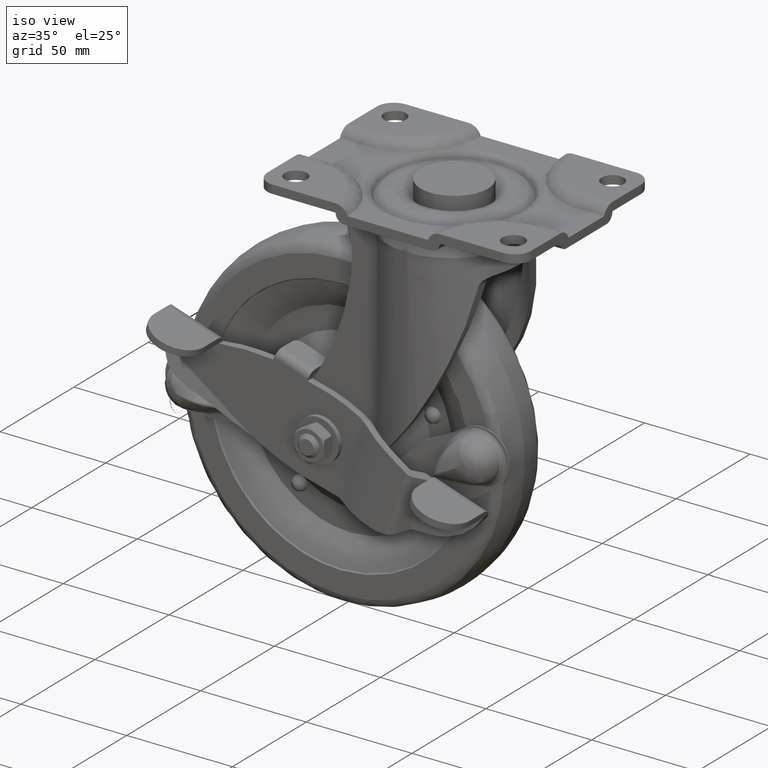
[diagram: clean part render]
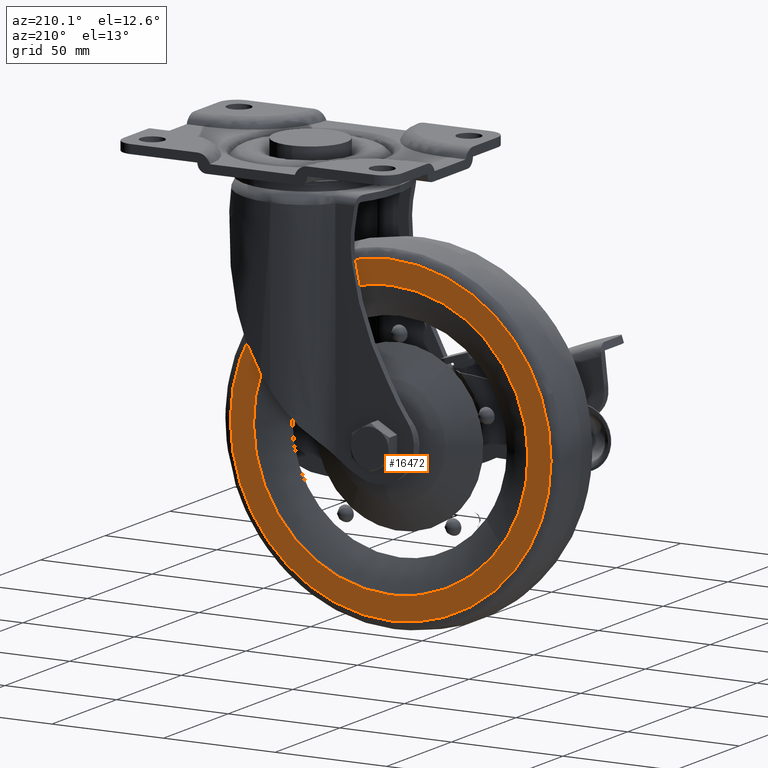
[diagram: tour spotlight — one face highlighted and labeled with its STEP entity id]
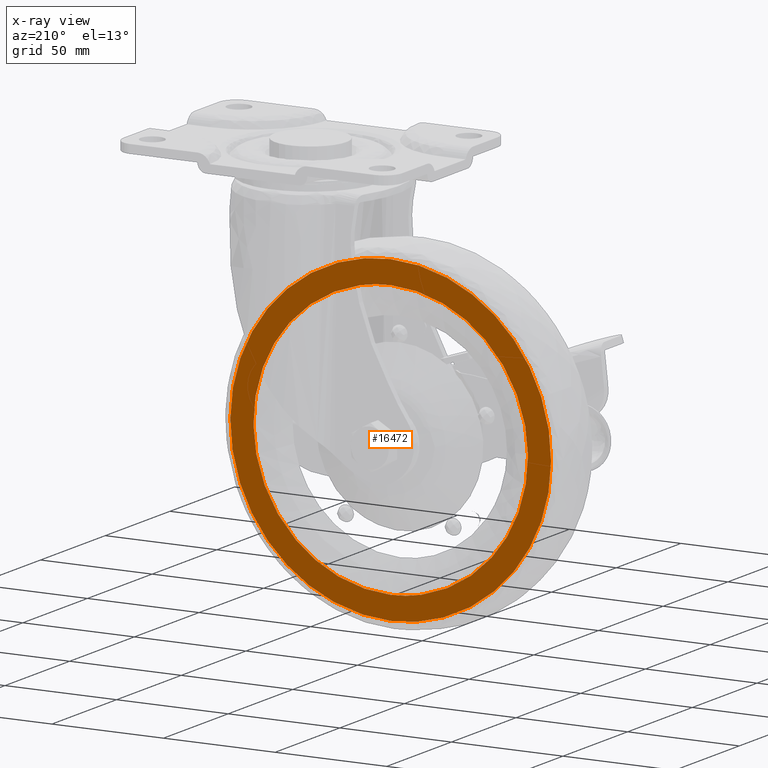
[diagram: x-ray of the same camera — body ghosted, this tour face saturated]
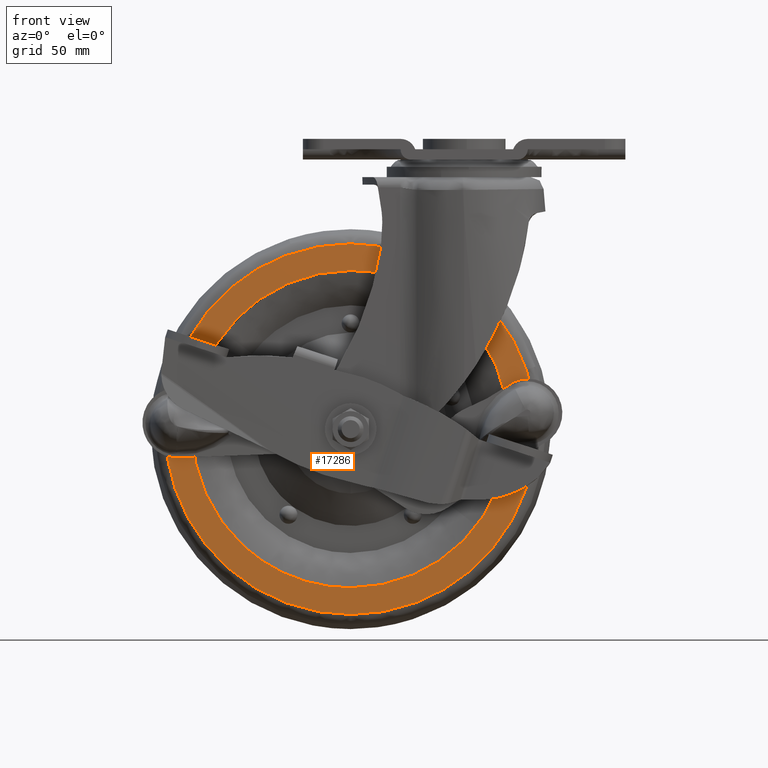
[diagram: tour spotlight — one face highlighted and labeled with its STEP entity id]
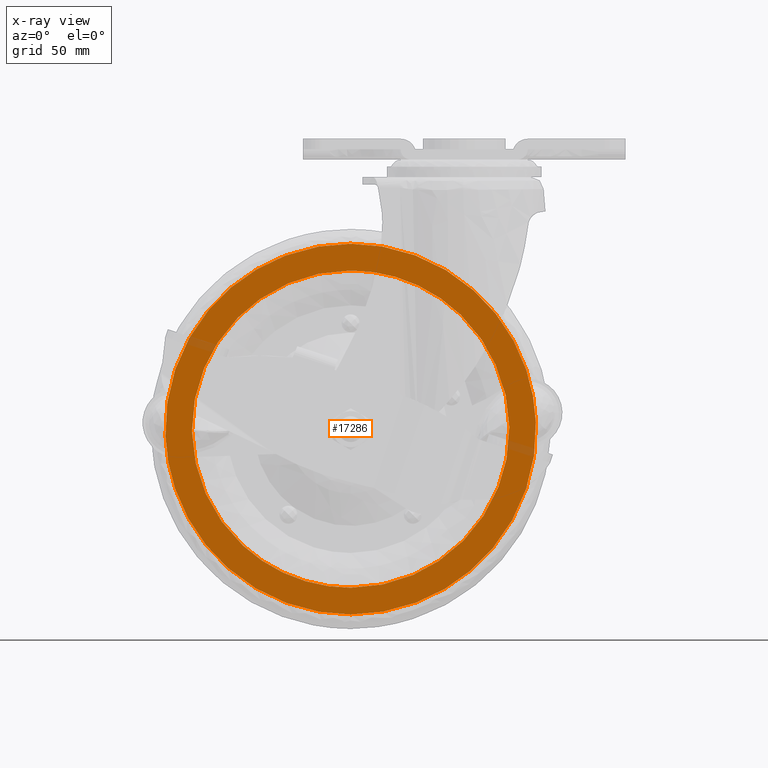
[diagram: x-ray of the same camera — body ghosted, this tour face saturated]
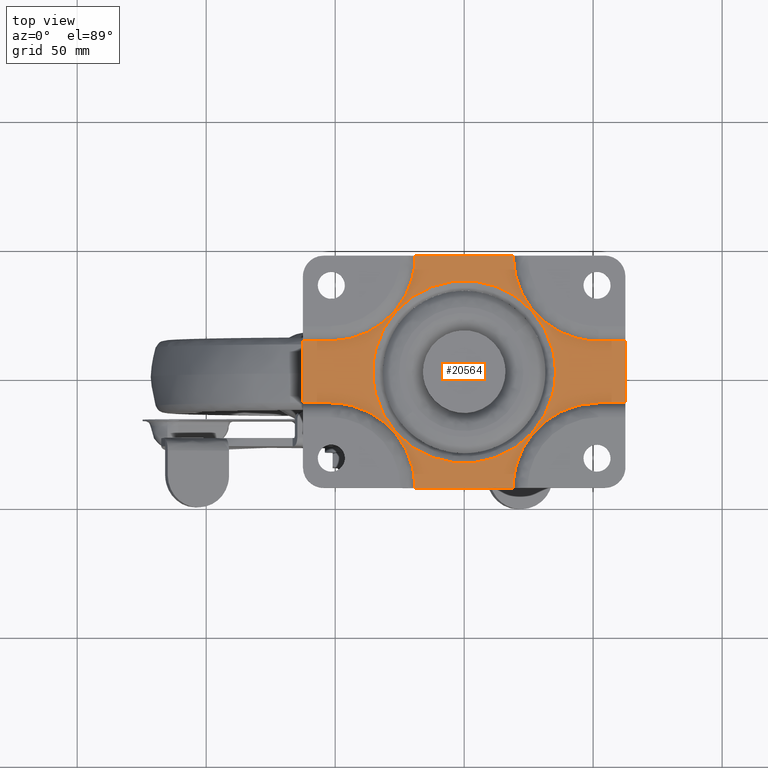
[diagram: tour spotlight — one face highlighted and labeled with its STEP entity id]
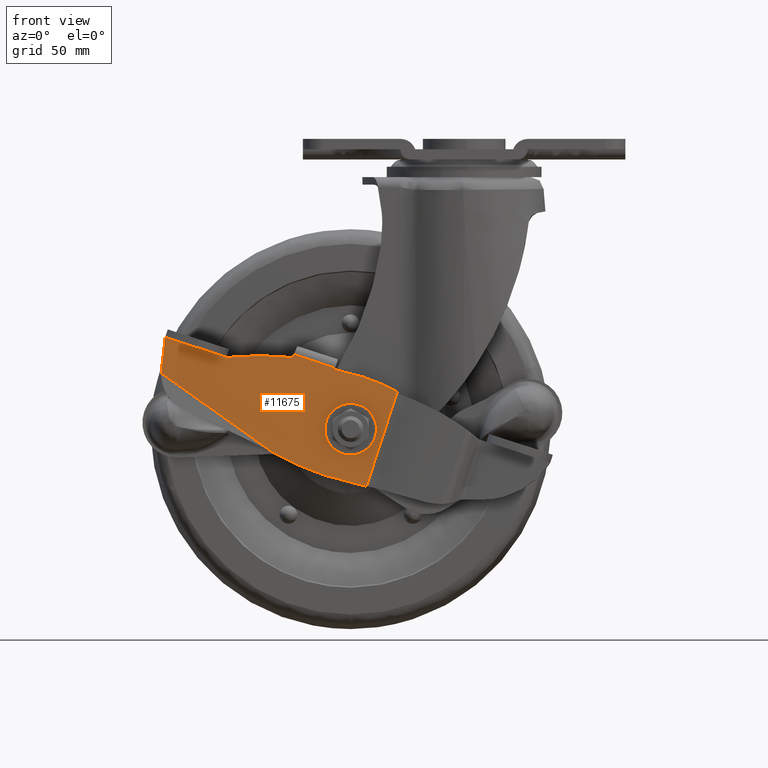
[diagram: tour spotlight — one face highlighted and labeled with its STEP entity id]
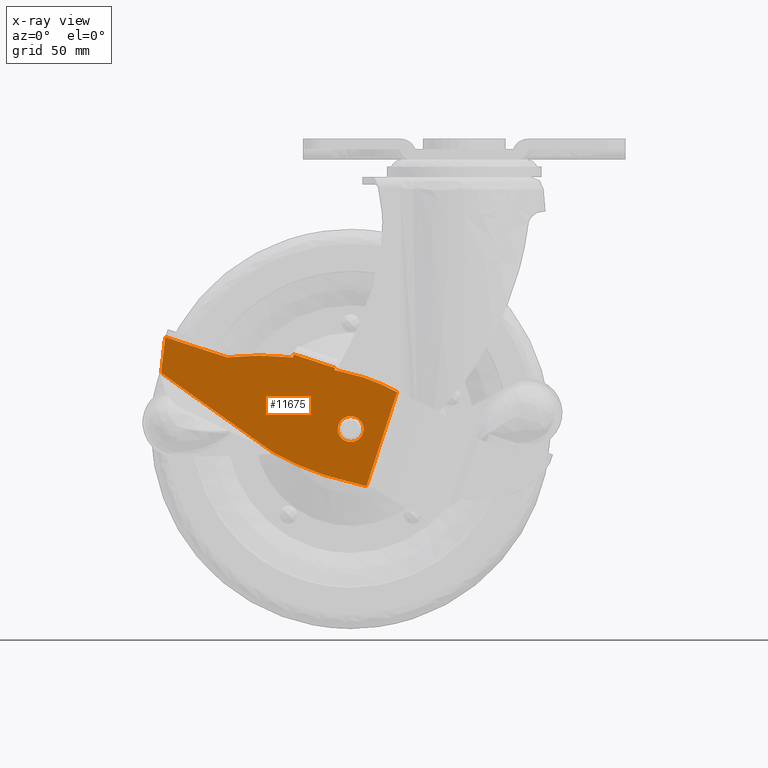
[diagram: x-ray of the same camera — body ghosted, this tour face saturated]
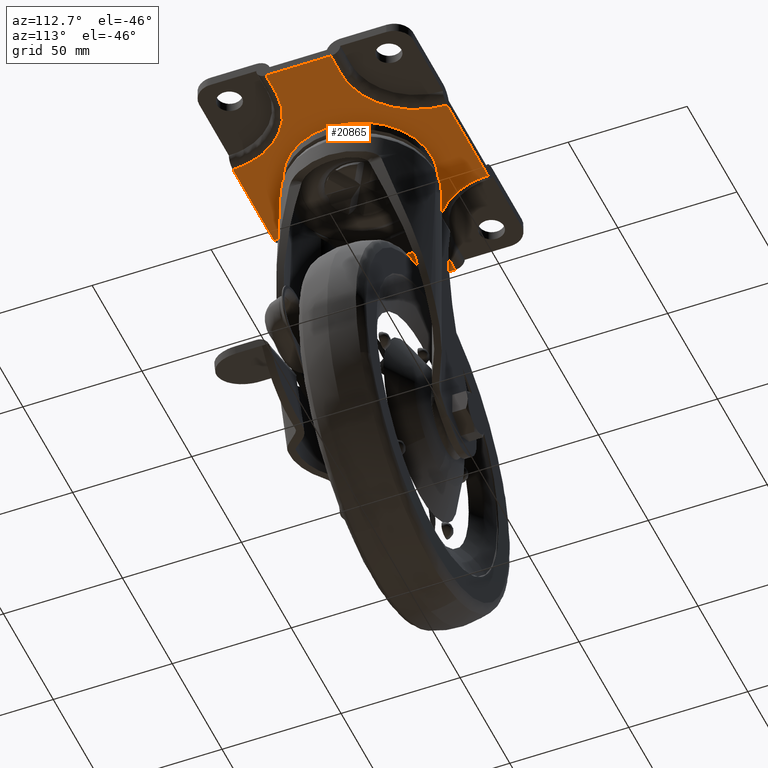
[diagram: tour spotlight — one face highlighted and labeled with its STEP entity id]
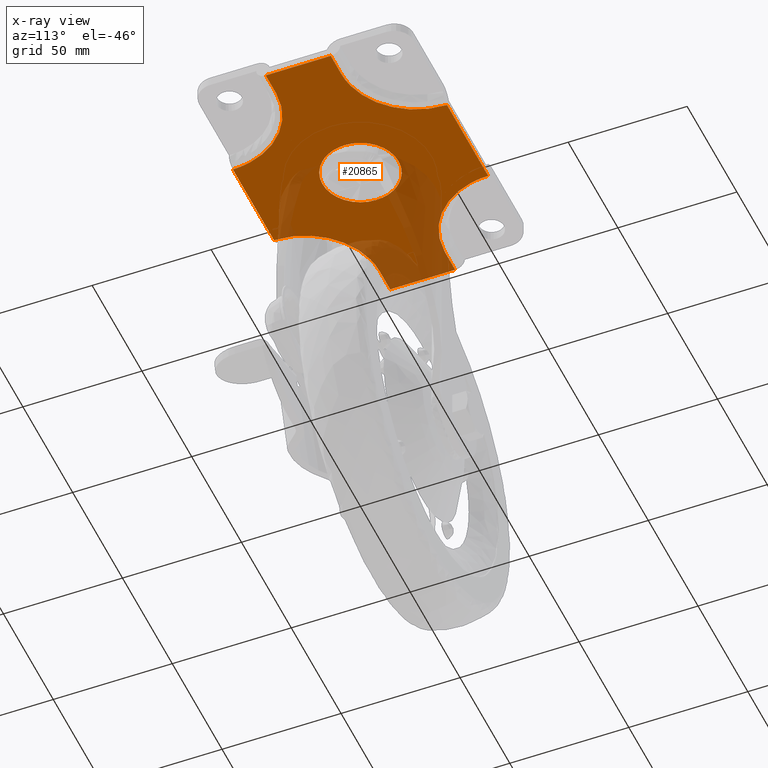
[diagram: x-ray of the same camera — body ghosted, this tour face saturated]
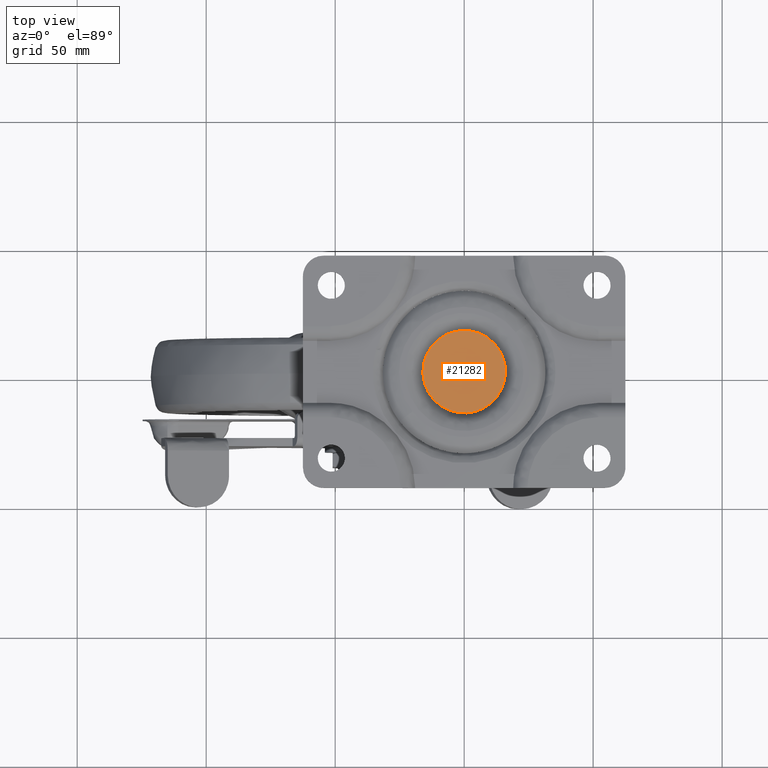
[diagram: tour spotlight — one face highlighted and labeled with its STEP entity id]
A machine part: a face-by-face anatomy tour. The part has 468 B-rep faces; the first image is the clean iso view, then the 6 largest visible faces are spotlighted one at a time (largest first), each with its STEP entity span.

Face 1 — auxiliary view, entity #16472. An x-ray twin of the same camera follows (body ghosted, this face saturated) — the face is partly hidden behind the body. In plain terms, the highlighted face is a freeform B-spline surface patch.
Definition (entity closure, byte-faithful):
#16271=CARTESIAN_POINT('',(17.495144199788200,14.0,-113.272811452859900));
#16272=VERTEX_POINT('',#16271);
#16286=CARTESIAN_POINT('',(-44.0,14.0,-174.0));
#16287=VERTEX_POINT('',#16286);
#16288=CARTESIAN_POINT('',(-44.0,14.0,-174.0));
#16289=CARTESIAN_POINT('',(16.731983679662374,14.000000000000002,-173.999999999882310));
#16290=CARTESIAN_POINT('',(17.495144199788196,13.999999999999996,-113.272811452859900));
#16298=(BOUNDED_CURVE()B_SPLINE_CURVE(2,(#16288,#16289,#16290),.UNSPECIFIED.,.F.,.U.)B_SPLINE_CURVE_WITH_KNOTS((3,3),(0.0,0.247784295920958),.UNSPECIFIED.)CURVE()GEOMETRIC_REPRESENTATION_ITEM()RATIONAL_B_SPLINE_CURVE((1.0,0.709702639985142,0.994854295642240))REPRESENTATION_ITEM(''));
#16299=EDGE_CURVE('',#16287,#16272,#16298,.T.);
#16301=CARTESIAN_POINT('',(-105.495144199788200,14.0,-111.727188547140100));
#16302=VERTEX_POINT('',#16301);
#16303=CARTESIAN_POINT('',(-105.495144199788230,14.000000000000005,-111.727188547140160));
#16304=CARTESIAN_POINT('',(-105.499999981315010,14.000000000000004,-112.113579018598940));
#16305=CARTESIAN_POINT('',(-105.499999981373900,14.0,-112.500000000234000));
#16306=CARTESIAN_POINT('',(-105.499999990745490,13.999999999999998,-174.000000000116300));
#16307=CARTESIAN_POINT('',(-44.0,14.0,-174.0));
#16315=(BOUNDED_CURVE()B_SPLINE_CURVE(2,(#16303,#16304,#16305,#16306,#16307),.UNSPECIFIED.,.F.,.U.)B_SPLINE_CURVE_WITH_KNOTS((3,2,3),(0.747784295920958,0.750000000000000,1.0),.UNSPECIFIED.)CURVE()GEOMETRIC_REPRESENTATION_ITEM()RATIONAL_B_SPLINE_CURVE((0.994854295642240,0.997404141201406,1.0,0.707106781186548,1.0))REPRESENTATION_ITEM(''));
#16316=EDGE_CURVE('',#16302,#16287,#16315,.T.);
#16359=CARTESIAN_POINT('',(-44.0,14.0,-51.000000000000007));
#16360=VERTEX_POINT('',#16359);
#16361=CARTESIAN_POINT('',(-44.0,14.0,-51.000000000000007));
#16362=CARTESIAN_POINT('',(-104.731983679662410,14.0,-51.000000000117751));
#16363=CARTESIAN_POINT('',(-105.495144199788230,14.000000000000005,-111.727188547140160));
#16371=(BOUNDED_CURVE()B_SPLINE_CURVE(2,(#16361,#16362,#16363),.UNSPECIFIED.,.F.,.U.)B_SPLINE_CURVE_WITH_KNOTS((3,3),(0.500000000000000,0.747784295920958),.UNSPECIFIED.)CURVE()GEOMETRIC_REPRESENTATION_ITEM()RATIONAL_B_SPLINE_CURVE((1.0,0.709702639985142,0.994854295642240))REPRESENTATION_ITEM(''));
#16372=EDGE_CURVE('',#16360,#16302,#16371,.T.);
#16374=CARTESIAN_POINT('',(17.495144199788196,13.999999999999996,-113.272811452859900));
#16375=CARTESIAN_POINT('',(17.499999981315050,14.000000000000005,-112.886420981401020));
#16376=CARTESIAN_POINT('',(17.499999981373929,14.0,-112.499999999765900));
#16377=CARTESIAN_POINT('',(17.499999990745483,14.000000000000002,-50.999999999883705));
#16378=CARTESIAN_POINT('',(-44.0,14.0,-51.000000000000007));
#16386=(BOUNDED_CURVE()B_SPLINE_CURVE(2,(#16374,#16375,#16376,#16377,#16378),.UNSPECIFIED.,.F.,.U.)B_SPLINE_CURVE_WITH_KNOTS((3,2,3),(0.247784295920958,0.250000000000000,0.500000000000000),.UNSPECIFIED.)CURVE()GEOMETRIC_REPRESENTATION_ITEM()RATIONAL_B_SPLINE_CURVE((0.994854295642240,0.997404141201405,1.0,0.707106781186548,1.0))REPRESENTATION_ITEM(''));
#16387=EDGE_CURVE('',#16272,#16360,#16386,.T.);
#16395=CARTESIAN_POINT('',(-122.980909424642210,14.0,-191.519897093825900));
#16396=CARTESIAN_POINT('',(-122.980909424642210,14.0,-33.480099052225967));
#16397=CARTESIAN_POINT('',(34.980909424642107,14.0,-191.519897093825900));
#16398=CARTESIAN_POINT('',(34.980909424642107,14.0,-33.480099052225967));
#16399=B_SPLINE_SURFACE_WITH_KNOTS('',1,1,((#16395,#16397),(#16396,#16398)),.UNSPECIFIED.,.F.,.F.,.U.,(2,2),(2,2),(0.0,158.039798041599910),(0.0,157.961818849284300),.UNSPECIFIED.);
#16400=CARTESIAN_POINT('',(-111.441270215077790,14.0,-87.739886874917715));
#16401=VERTEX_POINT('',#16400);
#16402=CARTESIAN_POINT('',(-44.0,14.0,-184.342801502242390));
#16403=VERTEX_POINT('',#16402);
#16404=CARTESIAN_POINT('',(-111.441270215077760,13.999999999999995,-87.739886874917715));
#16405=CARTESIAN_POINT('',(-115.842801517558390,14.000000000000004,-99.728719902807114));
#16406=CARTESIAN_POINT('',(-115.842801516107000,14.0,-112.499999994909800));
#16407=CARTESIAN_POINT('',(-115.842801507942350,13.999999999999998,-184.342801500149790));
#16408=CARTESIAN_POINT('',(-44.0,14.0,-184.342801502242390));
#16416=(BOUNDED_CURVE()B_SPLINE_CURVE(2,(#16404,#16405,#16406,#16407,#16408),.UNSPECIFIED.,.F.,.U.)B_SPLINE_CURVE_WITH_KNOTS((3,2,3),(0.691460350202081,0.750000000000000,1.0),.UNSPECIFIED.)CURVE()GEOMETRIC_REPRESENTATION_ITEM()RATIONAL_B_SPLINE_CURVE((0.894951884912775,0.931416534169901,1.0,0.707106781186548,1.0))REPRESENTATION_ITEM(''));
#16417=EDGE_CURVE('',#16401,#16403,#16416,.T.);
#16418=ORIENTED_EDGE('',*,*,#16417,.F.);
#16419=CARTESIAN_POINT('',(-44.0,14.0,-40.657198497757612));
#16420=VERTEX_POINT('',#16419);
#16421=CARTESIAN_POINT('',(-44.0,14.0,-40.657198497757612));
#16422=CARTESIAN_POINT('',(-94.155523854833177,13.999999999999998,-40.657198494760088));
#16423=CARTESIAN_POINT('',(-111.441270215077760,13.999999999999995,-87.739886874917715));
#16431=(BOUNDED_CURVE()B_SPLINE_CURVE(2,(#16421,#16422,#16423),.UNSPECIFIED.,.F.,.U.)B_SPLINE_CURVE_WITH_KNOTS((3,3),(0.500000000000000,0.691460350202081),.UNSPECIFIED.)CURVE()GEOMETRIC_REPRESENTATION_ITEM()RATIONAL_B_SPLINE_CURVE((1.0,0.775690247016646,0.894951884912775))REPRESENTATION_ITEM(''));
#16432=EDGE_CURVE('',#16420,#16401,#16431,.T.);
#16433=ORIENTED_EDGE('',*,*,#16432,.F.);
#16434=CARTESIAN_POINT('',(23.441270215077768,14.0,-137.260113125082310));
#16435=VERTEX_POINT('',#16434);
#16436=CARTESIAN_POINT('',(23.441270215077761,13.999999999999996,-137.260113125082230));
#16437=CARTESIAN_POINT('',(27.842801517558343,13.999999999999991,-125.271280097192870));
#16438=CARTESIAN_POINT('',(27.842801516106949,14.0,-112.500000005090200));
#16439=CARTESIAN_POINT('',(27.842801507942337,13.999999999999998,-40.657198499850267));
#16440=CARTESIAN_POINT('',(-44.0,14.0,-40.657198497757612));
#16448=(BOUNDED_CURVE()B_SPLINE_CURVE(2,(#16436,#16437,#16438,#16439,#16440),.UNSPECIFIED.,.F.,.U.)B_SPLINE_CURVE_WITH_KNOTS((3,2,3),(0.191460350202081,0.250000000000000,0.500000000000000),.UNSPECIFIED.)CURVE()GEOMETRIC_REPRESENTATION_ITEM()RATIONAL_B_SPLINE_CURVE((0.894951884912774,0.931416534169901,1.0,0.707106781186548,1.0))REPRESENTATION_ITEM(''));
#16449=EDGE_CURVE('',#16435,#16420,#16448,.T.);
#16450=ORIENTED_EDGE('',*,*,#16449,.F.);
#16451=CARTESIAN_POINT('',(-44.0,14.0,-184.342801502242390));
#16452=CARTESIAN_POINT('',(6.155523854833199,14.0,-184.342801505239980));
#16453=CARTESIAN_POINT('',(23.441270215077761,13.999999999999996,-137.260113125082230));
#16461=(BOUNDED_CURVE()B_SPLINE_CURVE(2,(#16451,#16452,#16453),.UNSPECIFIED.,.F.,.U.)B_SPLINE_CURVE_WITH_KNOTS((3,3),(0.0,0.191460350202081),.UNSPECIFIED.)CURVE()GEOMETRIC_REPRESENTATION_ITEM()RATIONAL_B_SPLINE_CURVE((1.0,0.775690247016646,0.894951884912774))REPRESENTATION_ITEM(''));
#16462=EDGE_CURVE('',#16403,#16435,#16461,.T.);
#16463=ORIENTED_EDGE('',*,*,#16462,.F.);
#16464=EDGE_LOOP('',(#16418,#16433,#16450,#16463));
#16465=FACE_OUTER_BOUND('',#16464,.T.);
#16466=ORIENTED_EDGE('',*,*,#16299,.T.);
#16467=ORIENTED_EDGE('',*,*,#16387,.T.);
#16468=ORIENTED_EDGE('',*,*,#16372,.T.);
#16469=ORIENTED_EDGE('',*,*,#16316,.T.);
#16470=EDGE_LOOP('',(#16466,#16467,#16468,#16469));
#16471=FACE_BOUND('',#16470,.T.);
#16472=ADVANCED_FACE('',(#16465,#16471),#16399,.T.);

Face 2 — front view, entity #17286. An x-ray twin of the same camera follows (body ghosted, this face saturated) — the face is partly hidden behind the body. In plain terms, the highlighted face is a freeform B-spline surface patch.
Definition (entity closure, byte-faithful):
#17061=CARTESIAN_POINT('',(24.042195532061040,-14.0,-89.442511946076735));
#17062=VERTEX_POINT('',#17061);
#17076=CARTESIAN_POINT('',(-44.0,-14.0,-184.342801502242390));
#17077=VERTEX_POINT('',#17076);
#17078=CARTESIAN_POINT('',(-44.0,-14.0,-184.342801502242390));
#17079=CARTESIAN_POINT('',(27.842801503398938,-13.999999999999998,-184.342801501850540));
#17080=CARTESIAN_POINT('',(27.842801505012009,-14.0,-112.499999999061500));
#17081=CARTESIAN_POINT('',(27.842801505277890,-14.000000000000005,-100.658025716684490));
#17082=CARTESIAN_POINT('',(24.042195532061047,-13.999999999999998,-89.442511946076735));
#17090=(BOUNDED_CURVE()B_SPLINE_CURVE(2,(#17078,#17079,#17080,#17081,#17082),.UNSPECIFIED.,.F.,.U.)B_SPLINE_CURVE_WITH_KNOTS((3,2,3),(0.0,0.250000000000000,0.304552238306195),.UNSPECIFIED.)CURVE()GEOMETRIC_REPRESENTATION_ITEM()RATIONAL_B_SPLINE_CURVE((1.0,0.707106781186548,1.0,0.936088077316080,0.900068462127043))REPRESENTATION_ITEM(''));
#17091=EDGE_CURVE('',#17077,#17062,#17090,.T.);
#17093=CARTESIAN_POINT('',(-112.042195532061100,-14.0,-135.557488053923210));
#17094=VERTEX_POINT('',#17093);
#17095=CARTESIAN_POINT('',(-112.042195532061090,-13.999999999999996,-135.557488053923240));
#17096=CARTESIAN_POINT('',(-95.510295387150947,-14.000000000000004,-184.342801502789060));
#17097=CARTESIAN_POINT('',(-44.0,-14.0,-184.342801502242390));
#17105=(BOUNDED_CURVE()B_SPLINE_CURVE(2,(#17095,#17096,#17097),.UNSPECIFIED.,.F.,.U.)B_SPLINE_CURVE_WITH_KNOTS((3,3),(0.804552238306195,1.0),.UNSPECIFIED.)CURVE()GEOMETRIC_REPRESENTATION_ITEM()RATIONAL_B_SPLINE_CURVE((0.900068462127043,0.771018703870467,1.0))REPRESENTATION_ITEM(''));
#17106=EDGE_CURVE('',#17094,#17077,#17105,.T.);
#17150=CARTESIAN_POINT('',(-44.0,-14.0,-40.657198497757612));
#17151=VERTEX_POINT('',#17150);
#17152=CARTESIAN_POINT('',(-44.0,-14.0,-40.657198497757612));
#17153=CARTESIAN_POINT('',(-115.842801503398950,-13.999999999999996,-40.657198498149533));
#17154=CARTESIAN_POINT('',(-115.842801505012010,-14.0,-112.500000000938500));
#17155=CARTESIAN_POINT('',(-115.842801505277830,-13.999999999999991,-124.341974283315450));
#17156=CARTESIAN_POINT('',(-112.042195532061090,-13.999999999999996,-135.557488053923240));
#17164=(BOUNDED_CURVE()B_SPLINE_CURVE(2,(#17152,#17153,#17154,#17155,#17156),.UNSPECIFIED.,.F.,.U.)B_SPLINE_CURVE_WITH_KNOTS((3,2,3),(0.500000000000000,0.750000000000000,0.804552238306195),.UNSPECIFIED.)CURVE()GEOMETRIC_REPRESENTATION_ITEM()RATIONAL_B_SPLINE_CURVE((1.0,0.707106781186548,1.0,0.936088077316081,0.900068462127043))REPRESENTATION_ITEM(''));
#17165=EDGE_CURVE('',#17151,#17094,#17164,.T.);
#17167=CARTESIAN_POINT('',(24.042195532061040,-13.999999999999996,-89.442511946076735));
#17168=CARTESIAN_POINT('',(7.510295387150919,-14.000000000000002,-40.657198497210992));
#17169=CARTESIAN_POINT('',(-44.0,-14.0,-40.657198497757612));
#17177=(BOUNDED_CURVE()B_SPLINE_CURVE(2,(#17167,#17168,#17169),.UNSPECIFIED.,.F.,.U.)B_SPLINE_CURVE_WITH_KNOTS((3,3),(0.304552238306195,0.500000000000000),.UNSPECIFIED.)CURVE()GEOMETRIC_REPRESENTATION_ITEM()RATIONAL_B_SPLINE_CURVE((0.900068462127043,0.771018703870467,1.0))REPRESENTATION_ITEM(''));
#17178=EDGE_CURVE('',#17062,#17151,#17177,.T.);
#17185=CARTESIAN_POINT('',(-123.015564305486510,-14.0,-33.480102906174167));
#17186=CARTESIAN_POINT('',(-123.015564305486510,-14.0,-191.519900947774090));
#17187=CARTESIAN_POINT('',(35.015565588997731,-14.0,-33.480102906174167));
#17188=CARTESIAN_POINT('',(35.015565588997731,-14.0,-191.519900947774000));
#17189=B_SPLINE_SURFACE_WITH_KNOTS('',1,1,((#17185,#17187),(#17186,#17188)),.UNSPECIFIED.,.F.,.F.,.U.,(2,2),(2,2),(0.0,158.039798041599910),(0.0,158.031129894484200),.UNSPECIFIED.);
#17190=ORIENTED_EDGE('',*,*,#17091,.T.);
#17191=ORIENTED_EDGE('',*,*,#17178,.T.);
#17192=ORIENTED_EDGE('',*,*,#17165,.T.);
#17193=ORIENTED_EDGE('',*,*,#17106,.T.);
#17194=EDGE_LOOP('',(#17190,#17191,#17192,#17193));
#17195=FACE_OUTER_BOUND('',#17194,.T.);
#17196=CARTESIAN_POINT('',(-44.0,-14.0,-51.000000000000007));
#17197=VERTEX_POINT('',#17196);
#17198=CARTESIAN_POINT('',(-70.185426424865142,-14.0,-168.146863712884990));
#17199=VERTEX_POINT('',#17198);
#17200=CARTESIAN_POINT('',(-44.0,-14.0,-51.000000000000007));
#17201=CARTESIAN_POINT('',(-47.461643567403499,-13.999999999999989,-50.999690849672433));
#17202=CARTESIAN_POINT('',(-53.519379994048613,-14.000000000000041,-51.512892198600809));
#17203=CARTESIAN_POINT('',(-61.536216934963633,-13.999999999999940,-53.408463367882042));
#17204=CARTESIAN_POINT('',(-68.867545744327487,-14.000000000000050,-56.070258203504920));
#17205=CARTESIAN_POINT('',(-76.295632291439034,-14.0,-59.889343219269229));
#17206=CARTESIAN_POINT('',(-83.332739461265390,-14.000000000000110,-64.969999902806464));
#17207=CARTESIAN_POINT('',(-88.583225334008787,-14.0,-69.985680236921311));
#17208=CARTESIAN_POINT('',(-92.948405075637169,-14.000000000000160,-75.084601290349028));
#17209=CARTESIAN_POINT('',(-96.586427701075678,-13.999999999999710,-80.344214920583653));
#17210=CARTESIAN_POINT('',(-100.403278438719700,-14.000000000000229,-87.516449803596416));
#17211=CARTESIAN_POINT('',(-102.927364750102200,-13.999999999999920,-94.336391814385081));
#17212=CARTESIAN_POINT('',(-104.633732200841390,-14.0,-101.609790023721100));
#17213=CARTESIAN_POINT('',(-105.463840687136100,-14.000000000000020,-107.948771616175610));
#17214=CARTESIAN_POINT('',(-105.594599882843100,-13.999999999999989,-115.748346341923910));
#17215=CARTESIAN_POINT('',(-104.771747691957200,-14.000000000000011,-122.861381007219090));
#17216=CARTESIAN_POINT('',(-103.115338051964800,-13.999999999999870,-129.812776579346210));
#17217=CARTESIAN_POINT('',(-101.211108700898290,-14.000000000000590,-135.344677592888390));
#17218=CARTESIAN_POINT('',(-98.175017370112784,-13.999999999999620,-141.933994300414100));
#17219=CARTESIAN_POINT('',(-94.470055017943764,-14.000000000000160,-147.934367834597590));
#17220=CARTESIAN_POINT('',(-89.090988425379862,-13.999999999999879,-154.588944576980110));
#17221=CARTESIAN_POINT('',(-83.342923819112343,-14.000000000000240,-160.042217678509590));
#17222=CARTESIAN_POINT('',(-76.622955253951460,-13.999999999999540,-164.804914284502390));
#17223=CARTESIAN_POINT('',(-72.338823442887886,-14.000000000000769,-167.133615684051110));
#17224=CARTESIAN_POINT('',(-70.185426424865142,-14.0,-168.146863712884990));
#17225=B_SPLINE_CURVE_WITH_KNOTS('',3,(#17200,#17201,#17202,#17203,#17204,#17205,#17206,#17207,#17208,#17209,#17210,#17211,#17212,#17213,#17214,#17215,#17216,#17217,#17218,#17219,#17220,#17221,#17222,#17223,#17224),.UNSPECIFIED.,.F.,.U.,(4,1,1,1,1,1,1,1,1,1,1,1,1,1,1,1,1,1,1,1,1,1,4),(0.000000022645253,10.384883044312261,18.173537867221601,24.664219195179729,33.751063364026642,43.162408679735961,50.626613198463048,55.494563951357677,63.283272526471009,69.773914187377187,79.834374721408693,85.026749899787234,92.166519051578305,98.981462103437835,108.392817545487600,113.585278046408310,120.400379652250610,125.917375775432010,135.328740303228610,141.494807621034110,151.555222624172190,159.019408706084900,166.159028217539490),.UNSPECIFIED.);
#17226=EDGE_CURVE('',#17197,#17199,#17225,.T.);
#17227=ORIENTED_EDGE('',*,*,#17226,.F.);
#17228=CARTESIAN_POINT('',(-17.814573575134869,-14.0,-56.853136287115092));
#17229=VERTEX_POINT('',#17228);
#17230=CARTESIAN_POINT('',(-17.814573575134872,-14.000000000000005,-56.853136287115092));
#17231=CARTESIAN_POINT('',(-30.253121305012485,-14.000000000000004,-51.000000006869278));
#17232=CARTESIAN_POINT('',(-44.0,-14.0,-51.000000000000007));
#17240=(BOUNDED_CURVE()B_SPLINE_CURVE(2,(#17230,#17231,#17232),.UNSPECIFIED.,.F.,.U.)B_SPLINE_CURVE_WITH_KNOTS((3,3),(0.427668464636257,0.500000000000000),.UNSPECIFIED.)CURVE()GEOMETRIC_REPRESENTATION_ITEM()RATIONAL_B_SPLINE_CURVE((0.879552628112207,0.915258335142377,1.0))REPRESENTATION_ITEM(''));
#17241=EDGE_CURVE('',#17229,#17197,#17240,.T.);
#17242=ORIENTED_EDGE('',*,*,#17241,.F.);
#17243=CARTESIAN_POINT('',(-44.0,-14.0,-174.0));
#17244=VERTEX_POINT('',#17243);
#17245=CARTESIAN_POINT('',(-44.0,-14.0,-174.0));
#17246=CARTESIAN_POINT('',(-40.322016878572512,-13.999999999999980,-174.000382674537010));
#17247=CARTESIAN_POINT('',(-34.805198368035391,-14.000000000000050,-173.503506287354410));
#17248=CARTESIAN_POINT('',(-25.831356353028760,-14.000000000000030,-171.456749171406390));
#17249=CARTESIAN_POINT('',(-18.407652660750710,-13.999999999999959,-168.672416851057510));
#17250=CARTESIAN_POINT('',(-11.396293728733720,-13.999999999999890,-164.781526587484390));
#17251=CARTESIAN_POINT('',(-5.989585468723327,-14.000000000000311,-160.985566953121890));
#17252=CARTESIAN_POINT('',(0.064537547148618,-13.999999999999840,-155.729444879167200));
#17253=CARTESIAN_POINT('',(5.999061383654244,-14.000000000000060,-148.797096262422510));
#17254=CARTESIAN_POINT('',(11.369134349902421,-13.999999999999980,-139.875107213368210));
#17255=CARTESIAN_POINT('',(14.638379623456910,-14.000000000000041,-131.709776269030300));
#17256=CARTESIAN_POINT('',(16.810380297493658,-13.999999999999870,-122.873237466795400));
#17257=CARTESIAN_POINT('',(17.594592700414079,-14.000000000000460,-115.534493620682990));
#17258=CARTESIAN_POINT('',(17.432703912685550,-13.999999999998490,-107.522997913027100));
#17259=CARTESIAN_POINT('',(16.536976148593961,-14.000000000003350,-100.860303230808600));
#17260=CARTESIAN_POINT('',(14.427573603539271,-13.999999999997060,-92.679473714627093));
#17261=CARTESIAN_POINT('',(11.210916172127581,-14.000000000000670,-84.844321349842716));
#17262=CARTESIAN_POINT('',(6.768091566196851,-14.000000000000099,-77.520436039022030));
#17263=CARTESIAN_POINT('',(2.146356426024639,-13.999999999999950,-71.646027621594612));
#17264=CARTESIAN_POINT('',(-3.646371626676263,-14.000000000000020,-65.790606657916726));
#17265=CARTESIAN_POINT('',(-10.424847478441400,-13.999999999999970,-60.712354432596953));
#17266=CARTESIAN_POINT('',(-15.661203242846170,-13.999999999999909,-57.866421540118438));
#17267=CARTESIAN_POINT('',(-17.814573575134869,-14.0,-56.853136287115092));
#17268=B_SPLINE_CURVE_WITH_KNOTS('',3,(#17245,#17246,#17247,#17248,#17249,#17250,#17251,#17252,#17253,#17254,#17255,#17256,#17257,#17258,#17259,#17260,#17261,#17262,#17263,#17264,#17265,#17266,#17267),.UNSPECIFIED.,.F.,.U.,(4,1,1,1,1,1,1,1,1,1,1,1,1,1,1,1,1,1,1,1,4),(0.000000021312246,11.033861782255601,16.550958238049390,27.584967448524651,34.724655838530651,40.566183412457796,47.381311092212982,58.739885873684742,67.826743978997882,78.536248693272668,85.026749899124368,95.087278311607037,100.604104068399000,109.041879322397190,115.207912633406390,125.917375775095490,134.355159629434610,140.845746346033510,148.309931318969600,159.019408706029310,166.159028217542300),.UNSPECIFIED.);
#17269=EDGE_CURVE('',#17244,#17229,#17268,.T.);
#17270=ORIENTED_EDGE('',*,*,#17269,.F.);
#17271=CARTESIAN_POINT('',(-70.185426424865142,-14.000000000000005,-168.146863712884940));
#17272=CARTESIAN_POINT('',(-57.746878694987522,-14.000000000000004,-173.999999993130700));
#17273=CARTESIAN_POINT('',(-44.0,-14.0,-174.0));
#17281=(BOUNDED_CURVE()B_SPLINE_CURVE(2,(#17271,#17272,#17273),.UNSPECIFIED.,.F.,.U.)B_SPLINE_CURVE_WITH_KNOTS((3,3),(0.927668464636257,1.0),.UNSPECIFIED.)CURVE()GEOMETRIC_REPRESENTATION_ITEM()RATIONAL_B_SPLINE_CURVE((0.879552628112207,0.915258335142377,1.0))REPRESENTATION_ITEM(''));
#17282=EDGE_CURVE('',#17199,#17244,#17281,.T.);
#17283=ORIENTED_EDGE('',*,*,#17282,.F.);
#17284=EDGE_LOOP('',(#17227,#17242,#17270,#17283));
#17285=FACE_BOUND('',#17284,.T.);
#17286=ADVANCED_FACE('',(#17195,#17285),#17189,.T.);

Face 3 — top view, entity #20564. In plain terms, the highlighted face is a freeform B-spline surface patch.
Definition (entity closure, byte-faithful):
#18891=CARTESIAN_POINT('',(-34.262966609970732,8.797151926626988,-4.000000000000001));
#18892=VERTEX_POINT('',#18891);
#18906=CARTESIAN_POINT('',(-35.374305346207493,0.0,-4.0));
#18907=VERTEX_POINT('',#18906);
#18908=CARTESIAN_POINT('',(-35.374305346207493,0.0,-4.0));
#18909=CARTESIAN_POINT('',(-35.374305345602011,4.468773329132926,-4.000000000000001));
#18910=CARTESIAN_POINT('',(-34.262966609970725,8.797151926626988,-4.000000000000002));
#18918=(BOUNDED_CURVE()B_SPLINE_CURVE(2,(#18908,#18909,#18910),.UNSPECIFIED.,.F.,.U.)B_SPLINE_CURVE_WITH_KNOTS((3,3),(0.0,0.042443238243170),.UNSPECIFIED.)CURVE()GEOMETRIC_REPRESENTATION_ITEM()RATIONAL_B_SPLINE_CURVE((1.0,0.950274653336367,0.917433344554084))REPRESENTATION_ITEM(''));
#18919=EDGE_CURVE('',#18907,#18892,#18918,.T.);
#18921=CARTESIAN_POINT('',(34.262322609970553,-8.797151926626988,-4.000000000000001));
#18922=VERTEX_POINT('',#18921);
#18923=CARTESIAN_POINT('',(34.262322609970553,-8.797151926626988,-4.000000000000001));
#18924=CARTESIAN_POINT('',(33.716273865119682,-10.924766687468660,-3.999999999999994));
#18925=CARTESIAN_POINT('',(32.316258559193429,-14.825944876341580,-4.000000000000005));
#18926=CARTESIAN_POINT('',(29.332418276306949,-20.043769759104780,-4.000000000000009));
#18927=CARTESIAN_POINT('',(25.384269641658630,-24.923026706903769,-3.999999999999983));
#18928=CARTESIAN_POINT('',(20.855421688947160,-28.791896201859341,-4.000000000000039));
#18929=CARTESIAN_POINT('',(15.631869993226250,-31.886024919584830,-3.999999999999912));
#18930=CARTESIAN_POINT('',(10.115999415195381,-34.104739317137252,-4.000000000000187));
#18931=CARTESIAN_POINT('',(4.214842866980628,-35.294189284543450,-3.999999999999889));
#18932=CARTESIAN_POINT('',(-2.054962372497822,-35.479766945019279,-4.000000000000190));
#18933=CARTESIAN_POINT('',(-7.288091851805870,-34.758471372852547,-3.999999999999843));
#18934=CARTESIAN_POINT('',(-12.719376885336180,-33.141383383426138,-4.000000000000126));
#18935=CARTESIAN_POINT('',(-17.024973539573640,-31.149478728410891,-3.999999999999947));
#18936=CARTESIAN_POINT('',(-21.661867156005759,-28.129564186534260,-4.000000000000026));
#18937=CARTESIAN_POINT('',(-25.116558253382198,-25.074844487769528,-3.999999999999996));
#18938=CARTESIAN_POINT('',(-28.802220023834909,-20.773498308081219,-3.999999999999967));
#18939=CARTESIAN_POINT('',(-31.853244509989299,-15.895003230393010,-4.000000000000120));
#18940=CARTESIAN_POINT('',(-34.067048815001343,-10.085243876856300,-3.999999999999785));
#18941=CARTESIAN_POINT('',(-35.157495394006993,-4.792451573432274,-4.000000000000424));
#18942=CARTESIAN_POINT('',(-35.374369187432748,-1.597499935451118,-3.999999999999279));
#18943=CARTESIAN_POINT('',(-35.374305346207493,0.0,-4.0));
#18944=B_SPLINE_CURVE_WITH_KNOTS('',3,(#18923,#18924,#18925,#18926,#18927,#18928,#18929,#18930,#18931,#18932,#18933,#18934,#18935,#18936,#18937,#18938,#18939,#18940,#18941,#18942,#18943),.UNSPECIFIED.,.F.,.U.,(4,1,1,1,1,1,1,1,1,1,1,1,1,1,1,1,1,1,4),(0.000000359104789,6.589661993750497,12.380660781499669,17.971932281438750,25.360441683185531,30.152939811559801,36.143564129999348,43.132701765330303,48.124782934002788,54.914193854647692,58.907950714077273,65.098302804793349,69.092089476209352,75.482130454549917,78.876834944901731,86.065637266114379,92.655392570190770,97.447831089303889,102.240330261328790),.UNSPECIFIED.);
#18945=EDGE_CURVE('',#18922,#18907,#18944,.T.);
#19002=CARTESIAN_POINT('',(35.373661346207307,0.0,-4.0));
#19003=VERTEX_POINT('',#19002);
#19004=CARTESIAN_POINT('',(35.373661346207307,0.0,-4.0));
#19005=CARTESIAN_POINT('',(35.373661345601832,-4.468773329132925,-4.000000000000001));
#19006=CARTESIAN_POINT('',(34.262322609970560,-8.797151926626988,-4.000000000000002));
#19014=(BOUNDED_CURVE()B_SPLINE_CURVE(2,(#19004,#19005,#19006),.UNSPECIFIED.,.F.,.U.)B_SPLINE_CURVE_WITH_KNOTS((3,3),(0.500000000000000,0.542443238243170),.UNSPECIFIED.)CURVE()GEOMETRIC_REPRESENTATION_ITEM()RATIONAL_B_SPLINE_CURVE((1.0,0.950274653336367,0.917433344554084))REPRESENTATION_ITEM(''));
#19015=EDGE_CURVE('',#19003,#18922,#19014,.T.);
#19017=CARTESIAN_POINT('',(-34.262966609970732,8.797151926626988,-4.000000000000001));
#19018=CARTESIAN_POINT('',(-33.650847184692800,11.182692564238691,-3.999999999999990));
#19019=CARTESIAN_POINT('',(-32.205033505150077,15.072051352485641,-4.000000000000013));
#19020=CARTESIAN_POINT('',(-29.536514294461199,19.618290920585380,-3.999999999999998));
#19021=CARTESIAN_POINT('',(-26.917503003133010,23.068423182707559,-4.000000000000012));
#19022=CARTESIAN_POINT('',(-24.153929557827521,25.963268731669491,-4.000000000000007));
#19023=CARTESIAN_POINT('',(-20.443377989222210,29.008518348112180,-3.999999999999993));
#19024=CARTESIAN_POINT('',(-15.885485207959080,31.796391383841598,-4.000000000000003));
#19025=CARTESIAN_POINT('',(-10.858412824968040,33.801615836747892,-4.000000000000001));
#19026=CARTESIAN_POINT('',(-5.343556963101591,35.109181667288077,-4.000000000000003));
#19027=CARTESIAN_POINT('',(-0.079439172110646,35.533350178683889,-3.999999999999998));
#19028=CARTESIAN_POINT('',(5.107293480830062,35.099907217582562,-4.000000000000003));
#19029=CARTESIAN_POINT('',(9.540891627516762,34.153381085605133,-4.000000000000002));
#19030=CARTESIAN_POINT('',(14.018685162717460,32.611144054498688,-4.0));
#19031=CARTESIAN_POINT('',(19.004959407457800,30.042927003637470,-4.000000000000004));
#19032=CARTESIAN_POINT('',(23.376113792398080,26.734805998225870,-4.000000000000002));
#19033=CARTESIAN_POINT('',(27.370324401593670,22.620067069880630,-3.999999999999988));
#19034=CARTESIAN_POINT('',(30.636823276042271,18.054095963339741,-4.000000000000040));
#19035=CARTESIAN_POINT('',(33.157887425449147,12.741956516561251,-3.999999999999929));
#19036=CARTESIAN_POINT('',(34.921817707869216,6.722597731278873,-4.000000000000142));
#19037=CARTESIAN_POINT('',(35.374124257311152,2.529387824663839,-3.999999999999669));
#19038=CARTESIAN_POINT('',(35.373661346207307,0.0,-4.0));
#19039=B_SPLINE_CURVE_WITH_KNOTS('',3,(#19017,#19018,#19019,#19020,#19021,#19022,#19023,#19024,#19025,#19026,#19027,#19028,#19029,#19030,#19031,#19032,#19033,#19034,#19035,#19036,#19037,#19038),.UNSPECIFIED.,.F.,.U.,(4,1,1,1,1,1,1,1,1,1,1,1,1,1,1,1,1,1,1,4),(0.000000358156711,7.388391636718637,12.380660780661341,15.775349562336320,20.368199542234919,24.361978874425660,30.152939810879730,36.343351476404891,40.536713489134179,47.126257787075893,52.118480826113753,56.112250512525407,60.705162969203244,66.296412999533402,72.886167006741971,77.079632575843959,83.469708228028637,89.659999161419222,94.652297392846435,102.240330261330700),.UNSPECIFIED.);
#19040=EDGE_CURVE('',#18892,#19003,#19039,.T.);
#19621=CARTESIAN_POINT('',(51.999677999999903,12.0,-4.0));
#19622=VERTEX_POINT('',#19621);
#19636=CARTESIAN_POINT('',(62.499677999999903,12.0,-4.0));
#19637=VERTEX_POINT('',#19636);
#19638=CARTESIAN_POINT('',(51.999677999999903,12.0,-4.0));
#19639=CARTESIAN_POINT('',(62.499677999999903,12.0,-4.0));
#19640=QUASI_UNIFORM_CURVE('',1,(#19638,#19639),.UNSPECIFIED.,.F.,.U.);
#19641=EDGE_CURVE('',#19622,#19637,#19640,.T.);
#19689=CARTESIAN_POINT('',(18.999677999999900,45.0,-4.0));
#19690=VERTEX_POINT('',#19689);
#19706=CARTESIAN_POINT('',(18.999677999999900,45.0,-4.0));
#19707=CARTESIAN_POINT('',(18.999677999999896,11.999999999999996,-4.000000000000000));
#19708=CARTESIAN_POINT('',(51.999677999999903,12.0,-4.0));
#19716=(BOUNDED_CURVE()B_SPLINE_CURVE(2,(#19706,#19707,#19708),.UNSPECIFIED.,.F.,.U.)CURVE()GEOMETRIC_REPRESENTATION_ITEM()QUASI_UNIFORM_CURVE()RATIONAL_B_SPLINE_CURVE((1.0,0.707106781186548,1.0))REPRESENTATION_ITEM(''));
#19717=EDGE_CURVE('',#19690,#19622,#19716,.T.);
#19750=CARTESIAN_POINT('',(-62.500321999999997,12.0,-4.0));
#19751=VERTEX_POINT('',#19750);
#19767=CARTESIAN_POINT('',(-52.000321999999997,12.0,-4.0));
#19768=VERTEX_POINT('',#19767);
#19769=CARTESIAN_POINT('',(-62.500321999999997,12.0,-4.0));
#19770=CARTESIAN_POINT('',(-52.000321999999997,12.0,-4.0));
#19771=QUASI_UNIFORM_CURVE('',1,(#19769,#19770),.UNSPECIFIED.,.F.,.U.);
#19772=EDGE_CURVE('',#19751,#19768,#19771,.T.);
#19816=CARTESIAN_POINT('',(-19.000322000000001,45.0,-4.0));
#19817=VERTEX_POINT('',#19816);
#19845=CARTESIAN_POINT('',(-52.000321999999997,12.0,-4.0));
#19846=CARTESIAN_POINT('',(-19.000322000000004,11.999999999999996,-4.000000000000000));
#19847=CARTESIAN_POINT('',(-19.000322000000001,45.0,-4.0));
#19855=(BOUNDED_CURVE()B_SPLINE_CURVE(2,(#19845,#19846,#19847),.UNSPECIFIED.,.F.,.U.)CURVE()GEOMETRIC_REPRESENTATION_ITEM()QUASI_UNIFORM_CURVE()RATIONAL_B_SPLINE_CURVE((1.0,0.707106781186548,1.0))REPRESENTATION_ITEM(''));
#19856=EDGE_CURVE('',#19768,#19817,#19855,.T.);
#19877=CARTESIAN_POINT('',(-52.000321999999997,-12.0,-4.0));
#19878=VERTEX_POINT('',#19877);
#19892=CARTESIAN_POINT('',(-62.500321999999997,-12.0,-4.0));
#19893=VERTEX_POINT('',#19892);
#19894=CARTESIAN_POINT('',(-52.000321999999997,-12.0,-4.0));
#19895=CARTESIAN_POINT('',(-62.500321999999997,-12.0,-4.0));
#19896=QUASI_UNIFORM_CURVE('',1,(#19894,#19895),.UNSPECIFIED.,.F.,.U.);
#19897=EDGE_CURVE('',#19878,#19893,#19896,.T.);
#19939=CARTESIAN_POINT('',(-19.000322000000001,-45.0,-4.0));
#19940=VERTEX_POINT('',#19939);
#19956=CARTESIAN_POINT('',(-19.000322000000001,-45.0,-4.0));
#19957=CARTESIAN_POINT('',(-19.000322000000004,-11.999999999999996,-4.000000000000000));
#19958=CARTESIAN_POINT('',(-52.000321999999997,-12.0,-4.0));
#19966=(BOUNDED_CURVE()B_SPLINE_CURVE(2,(#19956,#19957,#19958),.UNSPECIFIED.,.F.,.U.)CURVE()GEOMETRIC_REPRESENTATION_ITEM()QUASI_UNIFORM_CURVE()RATIONAL_B_SPLINE_CURVE((1.0,0.707106781186548,1.0))REPRESENTATION_ITEM(''));
#19967=EDGE_CURVE('',#19940,#19878,#19966,.T.);
#20000=CARTESIAN_POINT('',(62.499677999999903,-12.0,-4.0));
#20001=VERTEX_POINT('',#20000);
#20017=CARTESIAN_POINT('',(51.999677999999903,-12.0,-4.0));
#20018=VERTEX_POINT('',#20017);
#20019=CARTESIAN_POINT('',(62.499677999999903,-12.0,-4.0));
#20020=CARTESIAN_POINT('',(51.999677999999903,-12.0,-4.0));
#20021=QUASI_UNIFORM_CURVE('',1,(#20019,#20020),.UNSPECIFIED.,.F.,.U.);
#20022=EDGE_CURVE('',#20001,#20018,#20021,.T.);
#20066=CARTESIAN_POINT('',(18.999677999999900,-45.0,-4.0));
#20067=VERTEX_POINT('',#20066);
#20095=CARTESIAN_POINT('',(51.999677999999903,-12.0,-4.0));
#20096=CARTESIAN_POINT('',(18.999677999999896,-11.999999999999996,-4.000000000000000));
#20097=CARTESIAN_POINT('',(18.999677999999900,-45.0,-4.0));
#20105=(BOUNDED_CURVE()B_SPLINE_CURVE(2,(#20095,#20096,#20097),.UNSPECIFIED.,.F.,.U.)CURVE()GEOMETRIC_REPRESENTATION_ITEM()QUASI_UNIFORM_CURVE()RATIONAL_B_SPLINE_CURVE((1.0,0.707106781186548,1.0))REPRESENTATION_ITEM(''));
#20106=EDGE_CURVE('',#20018,#20067,#20105,.T.);
#20523=CARTESIAN_POINT('',(-68.744071757725735,49.495499825562533,-4.0));
#20524=CARTESIAN_POINT('',(68.743431110486895,49.495499825562533,-4.0));
#20525=CARTESIAN_POINT('',(-68.744071757725735,-49.495502239550653,-4.0));
#20526=CARTESIAN_POINT('',(68.743431110486895,-49.495502239550653,-4.0));
#20527=B_SPLINE_SURFACE_WITH_KNOTS('',1,1,((#20523,#20525),(#20524,#20526)),.UNSPECIFIED.,.F.,.F.,.U.,(2,2),(2,2),(0.0,137.487502868212600),(0.0,98.991002065113179),.UNSPECIFIED.);
#20528=ORIENTED_EDGE('',*,*,#19772,.F.);
#20529=CARTESIAN_POINT('',(-62.500321999999997,-12.0,-4.0));
#20530=CARTESIAN_POINT('',(-62.500321999999997,12.0,-4.0));
#20531=QUASI_UNIFORM_CURVE('',1,(#20529,#20530),.UNSPECIFIED.,.F.,.U.);
#20532=EDGE_CURVE('',#19893,#19751,#20531,.T.);
#20533=ORIENTED_EDGE('',*,*,#20532,.F.);
#20534=ORIENTED_EDGE('',*,*,#19897,.F.);
#20535=ORIENTED_EDGE('',*,*,#19967,.F.);
#20536=CARTESIAN_POINT('',(18.999677999999900,-45.0,-4.0));
#20537=CARTESIAN_POINT('',(-19.000322000000001,-45.0,-4.0));
#20538=QUASI_UNIFORM_CURVE('',1,(#20536,#20537),.UNSPECIFIED.,.F.,.U.);
#20539=EDGE_CURVE('',#20067,#19940,#20538,.T.);
#20540=ORIENTED_EDGE('',*,*,#20539,.F.);
#20541=ORIENTED_EDGE('',*,*,#20106,.F.);
#20542=ORIENTED_EDGE('',*,*,#20022,.F.);
#20543=CARTESIAN_POINT('',(62.499677999999903,12.0,-4.0));
#20544=CARTESIAN_POINT('',(62.499677999999903,-12.0,-4.0));
#20545=QUASI_UNIFORM_CURVE('',1,(#20543,#20544),.UNSPECIFIED.,.F.,.U.);
#20546=EDGE_CURVE('',#19637,#20001,#20545,.T.);
#20547=ORIENTED_EDGE('',*,*,#20546,.F.);
#20548=ORIENTED_EDGE('',*,*,#19641,.F.);
#20549=ORIENTED_EDGE('',*,*,#19717,.F.);
#20550=CARTESIAN_POINT('',(-19.000322000000001,45.0,-4.0));
#20551=CARTESIAN_POINT('',(18.999677999999900,45.0,-4.0));
#20552=QUASI_UNIFORM_CURVE('',1,(#20550,#20551),.UNSPECIFIED.,.F.,.U.);
#20553=EDGE_CURVE('',#19817,#19690,#20552,.T.);
#20554=ORIENTED_EDGE('',*,*,#20553,.F.);
#20555=ORIENTED_EDGE('',*,*,#19856,.F.);
#20556=EDGE_LOOP('',(#20528,#20533,#20534,#20535,#20540,#20541,#20542,#20547,#20548,#20549,#20554,#20555));
#20557=FACE_OUTER_BOUND('',#20556,.T.);
#20558=ORIENTED_EDGE('',*,*,#18919,.T.);
#20559=ORIENTED_EDGE('',*,*,#19040,.T.);
#20560=ORIENTED_EDGE('',*,*,#19015,.T.);
#20561=ORIENTED_EDGE('',*,*,#18945,.T.);
#20562=EDGE_LOOP('',(#20558,#20559,#20560,#20561));
#20563=FACE_BOUND('',#20562,.T.);
#20564=ADVANCED_FACE('',(#20557,#20563),#20527,.F.);

Face 4 — front view, entity #11675. An x-ray twin of the same camera follows (body ghosted, this face saturated) — the face is partly hidden behind the body. In plain terms, the highlighted face is a freeform B-spline surface patch.
Definition (entity closure, byte-faithful):
#10416=CARTESIAN_POINT('',(-44.0,-27.419335999999898,-107.499000000000000));
#10417=VERTEX_POINT('',#10416);
#10418=CARTESIAN_POINT('',(-39.014416414055283,-27.419335999999909,-112.107626061570700));
#10419=VERTEX_POINT('',#10418);
#10420=CARTESIAN_POINT('',(-44.0,-27.419335999999898,-107.499000000000000));
#10421=CARTESIAN_POINT('',(-39.377123151863167,-27.419335999999909,-107.499000000000010));
#10422=CARTESIAN_POINT('',(-39.014416414055276,-27.419335999999902,-112.107626061570730));
#10430=(BOUNDED_CURVE()B_SPLINE_CURVE(2,(#10420,#10421,#10422),.UNSPECIFIED.,.F.,.U.)B_SPLINE_CURVE_WITH_KNOTS((3,3),(0.0,0.236331300608891),.UNSPECIFIED.)CURVE()GEOMETRIC_REPRESENTATION_ITEM()RATIONAL_B_SPLINE_CURVE((1.0,0.723120658633169,0.969723356121989))REPRESENTATION_ITEM(''));
#10431=EDGE_CURVE('',#10417,#10419,#10430,.T.);
#10433=CARTESIAN_POINT('',(-48.985583585944717,-27.419335999999898,-112.892373938429300));
#10434=VERTEX_POINT('',#10433);
#10435=CARTESIAN_POINT('',(-48.985583585944724,-27.419335999999905,-112.892373938429340));
#10436=CARTESIAN_POINT('',(-49.000999999999998,-27.419335999999902,-112.696489825494130));
#10437=CARTESIAN_POINT('',(-49.000999999999998,-27.419335999999898,-112.500000000000000));
#10438=CARTESIAN_POINT('',(-49.000999999999998,-27.419335999999909,-107.499000000000010));
#10439=CARTESIAN_POINT('',(-44.0,-27.419335999999898,-107.499000000000000));
#10447=(BOUNDED_CURVE()B_SPLINE_CURVE(2,(#10435,#10436,#10437,#10438,#10439),.UNSPECIFIED.,.F.,.U.)B_SPLINE_CURVE_WITH_KNOTS((3,2,3),(0.736331300608892,0.750000000000000,1.0),.UNSPECIFIED.)CURVE()GEOMETRIC_REPRESENTATION_ITEM()RATIONAL_B_SPLINE_CURVE((0.969723356121989,0.983986122553379,1.0,0.707106781186547,1.0))REPRESENTATION_ITEM(''));
#10448=EDGE_CURVE('',#10434,#10417,#10447,.T.);
#10515=CARTESIAN_POINT('',(-44.0,-27.419335999999898,-117.501000000000000));
#10516=VERTEX_POINT('',#10515);
#10517=CARTESIAN_POINT('',(-39.014416414055276,-27.419335999999902,-112.107626061570730));
#10518=CARTESIAN_POINT('',(-38.998999999999988,-27.419335999999898,-112.303510174505830));
#10519=CARTESIAN_POINT('',(-38.999000000000002,-27.419335999999898,-112.500000000000000));
#10520=CARTESIAN_POINT('',(-38.999000000000009,-27.419335999999909,-117.501000000000000));
#10521=CARTESIAN_POINT('',(-44.0,-27.419335999999898,-117.501000000000000));
#10529=(BOUNDED_CURVE()B_SPLINE_CURVE(2,(#10517,#10518,#10519,#10520,#10521),.UNSPECIFIED.,.F.,.U.)B_SPLINE_CURVE_WITH_KNOTS((3,2,3),(0.236331300608891,0.250000000000000,0.500000000000000),.UNSPECIFIED.)CURVE()GEOMETRIC_REPRESENTATION_ITEM()RATIONAL_B_SPLINE_CURVE((0.969723356121989,0.983986122553379,1.0,0.707106781186547,1.0))REPRESENTATION_ITEM(''));
#10530=EDGE_CURVE('',#10419,#10516,#10529,.T.);
#10564=CARTESIAN_POINT('',(-44.0,-27.419335999999898,-117.501000000000000));
#10565=CARTESIAN_POINT('',(-48.622876848136819,-27.419335999999905,-117.500999999999990));
#10566=CARTESIAN_POINT('',(-48.985583585944724,-27.419335999999902,-112.892373938429300));
#10574=(BOUNDED_CURVE()B_SPLINE_CURVE(2,(#10564,#10565,#10566),.UNSPECIFIED.,.F.,.U.)B_SPLINE_CURVE_WITH_KNOTS((3,3),(0.500000000000000,0.736331300608891),.UNSPECIFIED.)CURVE()GEOMETRIC_REPRESENTATION_ITEM()RATIONAL_B_SPLINE_CURVE((1.0,0.723120658633169,0.969723356121989))REPRESENTATION_ITEM(''));
#10575=EDGE_CURVE('',#10516,#10434,#10574,.T.);
#10689=CARTESIAN_POINT('',(-92.160438672241199,-27.419335999999898,-84.704490167471008));
#10690=VERTEX_POINT('',#10689);
#10717=CARTESIAN_POINT('',(-92.129474000000002,-27.419335999999898,-84.609404999999896));
#10718=VERTEX_POINT('',#10717);
#10724=CARTESIAN_POINT('',(-92.160438672241199,-27.419335999999898,-84.704490167471008));
#10725=CARTESIAN_POINT('',(-92.129474000000002,-27.419335999999898,-84.609404999999896));
#10726=QUASI_UNIFORM_CURVE('',1,(#10724,#10725),.UNSPECIFIED.,.F.,.U.);
#10727=EDGE_CURVE('',#10690,#10718,#10726,.T.);
#10850=CARTESIAN_POINT('',(-115.906449631990990,-27.419335999999848,-76.918862698694397));
#10851=VERTEX_POINT('',#10850);
#10857=CARTESIAN_POINT('',(-115.898294780100600,-27.419335999999898,-76.869054687139908));
#10858=VERTEX_POINT('',#10857);
#10859=CARTESIAN_POINT('',(-115.898294780100500,-27.419335999999898,-76.869054687139936));
#10860=CARTESIAN_POINT('',(-115.903630744493210,-27.419335999999905,-76.893752637820455));
#10861=CARTESIAN_POINT('',(-115.906449631990800,-27.419335999999898,-76.918862698694412));
#10869=(BOUNDED_CURVE()B_SPLINE_CURVE(2,(#10859,#10860,#10861),.UNSPECIFIED.,.F.,.U.)CURVE()GEOMETRIC_REPRESENTATION_ITEM()QUASI_UNIFORM_CURVE()RATIONAL_B_SPLINE_CURVE((1.0,0.998725518035679,1.0))REPRESENTATION_ITEM(''));
#10870=EDGE_CURVE('',#10858,#10851,#10869,.T.);
#10947=CARTESIAN_POINT('',(-117.410744739423000,-27.419335999999898,-90.786551437800895));
#10948=VERTEX_POINT('',#10947);
#10963=CARTESIAN_POINT('',(-73.988713385616805,-27.419335999999898,-121.627510588561410));
#10964=VERTEX_POINT('',#10963);
#10972=CARTESIAN_POINT('',(-117.410744739423000,-27.419335999999898,-90.786551437800895));
#10973=CARTESIAN_POINT('',(-73.988713385616805,-27.419335999999898,-121.627510588561410));
#10974=QUASI_UNIFORM_CURVE('',1,(#10972,#10973),.UNSPECIFIED.,.F.,.U.);
#10975=EDGE_CURVE('',#10948,#10964,#10974,.T.);
#11099=CARTESIAN_POINT('',(-50.043059546164997,-27.419335999999848,-88.785849507018000));
#11100=VERTEX_POINT('',#11099);
#11121=CARTESIAN_POINT('',(-66.025534170447116,-27.419335999999848,-83.581134255214096));
#11122=VERTEX_POINT('',#11121);
#11136=CARTESIAN_POINT('',(-50.043059546164997,-27.419335999999848,-88.785849507018000));
#11137=CARTESIAN_POINT('',(-66.025534170447116,-27.419335999999848,-83.581134255214096));
#11138=QUASI_UNIFORM_CURVE('',1,(#11136,#11137),.UNSPECIFIED.,.F.,.U.);
#11139=EDGE_CURVE('',#11100,#11122,#11138,.T.);
#11564=CARTESIAN_POINT('',(-92.129474000000002,-27.419335999999898,-84.609404999999896));
#11565=CARTESIAN_POINT('',(-115.898294780100600,-27.419335999999898,-76.869054687139908));
#11566=QUASI_UNIFORM_CURVE('',1,(#11564,#11565),.UNSPECIFIED.,.F.,.U.);
#11567=EDGE_CURVE('',#10718,#10858,#11566,.T.);
#11575=CARTESIAN_POINT('',(-121.977021680062900,-27.419335999999848,-73.981145223927882));
#11576=CARTESIAN_POINT('',(-21.427506030998970,-27.419335999999848,-73.981145223927882));
#11577=CARTESIAN_POINT('',(-121.977021680062900,-27.419335999999848,-137.572973214024190));
#11578=CARTESIAN_POINT('',(-21.427506030998970,-27.419335999999848,-137.572973214024190));
#11579=B_SPLINE_SURFACE_WITH_KNOTS('',1,1,((#11575,#11577),(#11576,#11578)),.UNSPECIFIED.,.F.,.F.,.U.,(2,2),(2,2),(0.0,100.549515649064010),(0.0,63.591827990096313),.UNSPECIFIED.);
#11580=ORIENTED_EDGE('',*,*,#11567,.T.);
#11581=ORIENTED_EDGE('',*,*,#10870,.T.);
#11582=CARTESIAN_POINT('',(-117.323139946828210,-27.419335999999898,-89.538444031810997));
#11583=VERTEX_POINT('',#11582);
#11584=CARTESIAN_POINT('',(-115.906449631990990,-27.419335999999848,-76.918862698694397));
#11585=CARTESIAN_POINT('',(-117.323139946828210,-27.419335999999898,-89.538444031810997));
#11586=QUASI_UNIFORM_CURVE('',1,(#11584,#11585),.UNSPECIFIED.,.F.,.U.);
#11587=EDGE_CURVE('',#10851,#11583,#11586,.T.);
#11588=ORIENTED_EDGE('',*,*,#11587,.T.);
#11589=CARTESIAN_POINT('',(-117.410744739423000,-27.419335999999898,-90.786551437800895));
#11590=CARTESIAN_POINT('',(-117.392991752665920,-27.419335999999905,-90.160669323958444));
#11591=CARTESIAN_POINT('',(-117.323139946828410,-27.419335999999898,-89.538444031810982));
#11599=(BOUNDED_CURVE()B_SPLINE_CURVE(2,(#11589,#11590,#11591),.UNSPECIFIED.,.F.,.U.)CURVE()GEOMETRIC_REPRESENTATION_ITEM()QUASI_UNIFORM_CURVE()RATIONAL_B_SPLINE_CURVE((1.0,0.999129928878915,1.0))REPRESENTATION_ITEM(''));
#11600=EDGE_CURVE('',#10948,#11583,#11599,.T.);
#11601=ORIENTED_EDGE('',*,*,#11600,.F.);
#11602=ORIENTED_EDGE('',*,*,#10975,.T.);
#11603=CARTESIAN_POINT('',(-37.876616883691703,-27.419335999999848,-134.685062200066000));
#11604=VERTEX_POINT('',#11603);
#11605=CARTESIAN_POINT('',(-37.876616883691632,-27.419335999999898,-134.685062200065890));
#11606=CARTESIAN_POINT('',(-56.947536535610602,-27.419335999999898,-130.963024981974370));
#11607=CARTESIAN_POINT('',(-73.988713385616791,-27.419335999999898,-121.627510588561410));
#11615=(BOUNDED_CURVE()B_SPLINE_CURVE(2,(#11605,#11606,#11607),.UNSPECIFIED.,.F.,.U.)CURVE()GEOMETRIC_REPRESENTATION_ITEM()QUASI_UNIFORM_CURVE()RATIONAL_B_SPLINE_CURVE((1.0,0.988132920873693,1.0))REPRESENTATION_ITEM(''));
#11616=EDGE_CURVE('',#11604,#10964,#11615,.T.);
#11617=ORIENTED_EDGE('',*,*,#11616,.F.);
#11618=CARTESIAN_POINT('',(-25.993785423632801,-27.419335999999848,-98.195635111123195));
#11619=VERTEX_POINT('',#11618);
#11620=CARTESIAN_POINT('',(-37.876616883691703,-27.419335999999848,-134.685062200066000));
#11621=CARTESIAN_POINT('',(-25.993785423632801,-27.419335999999848,-98.195635111123195));
#11622=QUASI_UNIFORM_CURVE('',1,(#11620,#11621),.UNSPECIFIED.,.F.,.U.);
#11623=EDGE_CURVE('',#11604,#11619,#11622,.T.);
#11624=ORIENTED_EDGE('',*,*,#11623,.T.);
#11625=CARTESIAN_POINT('',(-50.293989999999987,-27.419335999999898,-89.556398999999900));
#11626=VERTEX_POINT('',#11625);
#11627=CARTESIAN_POINT('',(-50.293989999999987,-27.419335999999898,-89.556398999999900));
#11628=CARTESIAN_POINT('',(-37.438387238296542,-27.419335999999873,-91.891605380760026));
#11629=CARTESIAN_POINT('',(-25.993785423632801,-27.419335999999848,-98.195635111123195));
#11637=(BOUNDED_CURVE()B_SPLINE_CURVE(2,(#11627,#11628,#11629),.UNSPECIFIED.,.F.,.U.)CURVE()GEOMETRIC_REPRESENTATION_ITEM()QUASI_UNIFORM_CURVE()RATIONAL_B_SPLINE_CURVE((1.0,0.986923558764634,1.0))REPRESENTATION_ITEM(''));
#11638=EDGE_CURVE('',#11626,#11619,#11637,.T.);
#11639=ORIENTED_EDGE('',*,*,#11638,.F.);
#11640=CARTESIAN_POINT('',(-50.293989999999987,-27.419335999999898,-89.556398999999900));
#11641=CARTESIAN_POINT('',(-50.043059546164997,-27.419335999999848,-88.785849507018000));
#11642=QUASI_UNIFORM_CURVE('',1,(#11640,#11641),.UNSPECIFIED.,.F.,.U.);
#11643=EDGE_CURVE('',#11626,#11100,#11642,.T.);
#11644=ORIENTED_EDGE('',*,*,#11643,.T.);
#11645=ORIENTED_EDGE('',*,*,#11139,.T.);
#11646=CARTESIAN_POINT('',(-66.502895520877203,-27.419335999999898,-84.724498376136012));
#11647=VERTEX_POINT('',#11646);
#11648=CARTESIAN_POINT('',(-66.025534170447116,-27.419335999999848,-83.581134255214096));
#11649=CARTESIAN_POINT('',(-66.502895520877203,-27.419335999999898,-84.724498376136012));
#11650=QUASI_UNIFORM_CURVE('',1,(#11648,#11649),.UNSPECIFIED.,.F.,.U.);
#11651=EDGE_CURVE('',#11122,#11647,#11650,.T.);
#11652=ORIENTED_EDGE('',*,*,#11651,.T.);
#11653=CARTESIAN_POINT('',(-92.160438672241185,-27.419335999999898,-84.704490167471107));
#11654=CARTESIAN_POINT('',(-79.330536678194875,-27.419335999999902,-83.264901334818276));
#11655=CARTESIAN_POINT('',(-66.502895520877289,-27.419335999999898,-84.724498376136154));
#11663=(BOUNDED_CURVE()B_SPLINE_CURVE(2,(#11653,#11654,#11655),.UNSPECIFIED.,.F.,.U.)CURVE()GEOMETRIC_REPRESENTATION_ITEM()QUASI_UNIFORM_CURVE()RATIONAL_B_SPLINE_CURVE((1.0,0.993676502748711,1.0))REPRESENTATION_ITEM(''));
#11664=EDGE_CURVE('',#10690,#11647,#11663,.T.);
#11665=ORIENTED_EDGE('',*,*,#11664,.F.);
#11666=ORIENTED_EDGE('',*,*,#10727,.T.);
#11667=EDGE_LOOP('',(#11580,#11581,#11588,#11601,#11602,#11617,#11624,#11639,#11644,#11645,#11652,#11665,#11666));
#11668=FACE_OUTER_BOUND('',#11667,.T.);
#11669=ORIENTED_EDGE('',*,*,#10575,.T.);
#11670=ORIENTED_EDGE('',*,*,#10448,.T.);
#11671=ORIENTED_EDGE('',*,*,#10431,.T.);
#11672=ORIENTED_EDGE('',*,*,#10530,.T.);
#11673=EDGE_LOOP('',(#11669,#11670,#11671,#11672));
#11674=FACE_BOUND('',#11673,.T.);
#11675=ADVANCED_FACE('',(#11668,#11674),#11579,.F.);

Face 5 — auxiliary view, entity #20865. An x-ray twin of the same camera follows (body ghosted, this face saturated) — the face is partly hidden behind the body. In plain terms, the highlighted face is a freeform B-spline surface patch.
Definition (entity closure, byte-faithful):
#20125=CARTESIAN_POINT('',(62.499677999999903,13.660000000000000,-8.0));
#20126=VERTEX_POINT('',#20125);
#20140=CARTESIAN_POINT('',(51.999677999999797,13.660000000000000,-8.0));
#20141=VERTEX_POINT('',#20140);
#20142=CARTESIAN_POINT('',(51.999677999999797,13.660000000000000,-8.0));
#20143=CARTESIAN_POINT('',(62.499677999999903,13.660000000000000,-8.0));
#20144=QUASI_UNIFORM_CURVE('',1,(#20142,#20143),.UNSPECIFIED.,.F.,.U.);
#20145=EDGE_CURVE('',#20141,#20126,#20144,.T.);
#20181=CARTESIAN_POINT('',(20.659677999999801,45.0,-8.0));
#20182=VERTEX_POINT('',#20181);
#20198=CARTESIAN_POINT('',(20.659677999999801,45.0,-8.0));
#20199=CARTESIAN_POINT('',(20.659677999999804,13.659999999999998,-8.0));
#20200=CARTESIAN_POINT('',(51.999677999999797,13.660000000000000,-8.0));
#20208=(BOUNDED_CURVE()B_SPLINE_CURVE(2,(#20198,#20199,#20200),.UNSPECIFIED.,.F.,.U.)CURVE()GEOMETRIC_REPRESENTATION_ITEM()QUASI_UNIFORM_CURVE()RATIONAL_B_SPLINE_CURVE((1.0,0.707106781186547,1.0))REPRESENTATION_ITEM(''));
#20209=EDGE_CURVE('',#20182,#20141,#20208,.T.);
#20228=CARTESIAN_POINT('',(-62.500321999999997,13.660000000000000,-8.0));
#20229=VERTEX_POINT('',#20228);
#20244=CARTESIAN_POINT('',(-52.000321999999997,13.660000000000000,-8.0));
#20245=VERTEX_POINT('',#20244);
#20259=CARTESIAN_POINT('',(-62.500321999999997,13.660000000000000,-8.0));
#20260=CARTESIAN_POINT('',(-52.000321999999997,13.660000000000000,-8.0));
#20261=QUASI_UNIFORM_CURVE('',1,(#20259,#20260),.UNSPECIFIED.,.F.,.U.);
#20262=EDGE_CURVE('',#20229,#20245,#20261,.T.);
#20284=CARTESIAN_POINT('',(-20.660322000000001,45.0,-8.0));
#20285=VERTEX_POINT('',#20284);
#20299=CARTESIAN_POINT('',(-52.000321999999997,13.660000000000000,-8.0));
#20300=CARTESIAN_POINT('',(-20.660321999999997,13.659999999999998,-8.0));
#20301=CARTESIAN_POINT('',(-20.660322000000001,45.0,-8.0));
#20309=(BOUNDED_CURVE()B_SPLINE_CURVE(2,(#20299,#20300,#20301),.UNSPECIFIED.,.F.,.U.)CURVE()GEOMETRIC_REPRESENTATION_ITEM()QUASI_UNIFORM_CURVE()RATIONAL_B_SPLINE_CURVE((1.0,0.707106781186547,1.0))REPRESENTATION_ITEM(''));
#20310=EDGE_CURVE('',#20245,#20285,#20309,.T.);
#20331=CARTESIAN_POINT('',(-62.500321999999997,-13.660000000000000,-8.0));
#20332=VERTEX_POINT('',#20331);
#20346=CARTESIAN_POINT('',(-52.000321999999997,-13.660000000000000,-8.0));
#20347=VERTEX_POINT('',#20346);
#20348=CARTESIAN_POINT('',(-52.000321999999997,-13.660000000000000,-8.0));
#20349=CARTESIAN_POINT('',(-62.500321999999997,-13.660000000000000,-8.0));
#20350=QUASI_UNIFORM_CURVE('',1,(#20348,#20349),.UNSPECIFIED.,.F.,.U.);
#20351=EDGE_CURVE('',#20347,#20332,#20350,.T.);
#20387=CARTESIAN_POINT('',(-20.660322000000001,-45.0,-8.0));
#20388=VERTEX_POINT('',#20387);
#20404=CARTESIAN_POINT('',(-20.660322000000001,-45.0,-8.0));
#20405=CARTESIAN_POINT('',(-20.660321999999997,-13.659999999999998,-8.0));
#20406=CARTESIAN_POINT('',(-52.000321999999997,-13.660000000000000,-8.0));
#20414=(BOUNDED_CURVE()B_SPLINE_CURVE(2,(#20404,#20405,#20406),.UNSPECIFIED.,.F.,.U.)CURVE()GEOMETRIC_REPRESENTATION_ITEM()QUASI_UNIFORM_CURVE()RATIONAL_B_SPLINE_CURVE((1.0,0.707106781186547,1.0))REPRESENTATION_ITEM(''));
#20415=EDGE_CURVE('',#20388,#20347,#20414,.T.);
#20434=CARTESIAN_POINT('',(62.499677999999903,-13.660000000000000,-8.0));
#20435=VERTEX_POINT('',#20434);
#20450=CARTESIAN_POINT('',(51.999677999999797,-13.660000000000000,-8.0));
#20451=VERTEX_POINT('',#20450);
#20465=CARTESIAN_POINT('',(62.499677999999903,-13.660000000000000,-8.0));
#20466=CARTESIAN_POINT('',(51.999677999999797,-13.660000000000000,-8.0));
#20467=QUASI_UNIFORM_CURVE('',1,(#20465,#20466),.UNSPECIFIED.,.F.,.U.);
#20468=EDGE_CURVE('',#20435,#20451,#20467,.T.);
#20490=CARTESIAN_POINT('',(20.659677999999850,-45.0,-8.0));
#20491=VERTEX_POINT('',#20490);
#20505=CARTESIAN_POINT('',(51.999677999999797,-13.660000000000000,-8.0));
#20506=CARTESIAN_POINT('',(20.659677999999804,-13.659999999999998,-8.0));
#20507=CARTESIAN_POINT('',(20.659677999999801,-45.0,-8.0));
#20515=(BOUNDED_CURVE()B_SPLINE_CURVE(2,(#20505,#20506,#20507),.UNSPECIFIED.,.F.,.U.)CURVE()GEOMETRIC_REPRESENTATION_ITEM()QUASI_UNIFORM_CURVE()RATIONAL_B_SPLINE_CURVE((1.0,0.707106781186547,1.0))REPRESENTATION_ITEM(''));
#20516=EDGE_CURVE('',#20451,#20491,#20515,.T.);
#20686=CARTESIAN_POINT('',(-62.500321999999997,13.660000000000000,-8.0));
#20687=CARTESIAN_POINT('',(-62.500321999999997,-13.660000000000000,-8.0));
#20688=QUASI_UNIFORM_CURVE('',1,(#20686,#20687),.UNSPECIFIED.,.F.,.U.);
#20689=EDGE_CURVE('',#20229,#20332,#20688,.T.);
#20710=CARTESIAN_POINT('',(20.659677999999801,45.0,-8.0));
#20711=CARTESIAN_POINT('',(-20.660322000000001,45.0,-8.0));
#20712=QUASI_UNIFORM_CURVE('',1,(#20710,#20711),.UNSPECIFIED.,.F.,.U.);
#20713=EDGE_CURVE('',#20182,#20285,#20712,.T.);
#20732=CARTESIAN_POINT('',(62.499677999999903,-13.660000000000000,-8.0));
#20733=CARTESIAN_POINT('',(62.499677999999903,13.660000000000000,-8.0));
#20734=QUASI_UNIFORM_CURVE('',1,(#20732,#20733),.UNSPECIFIED.,.F.,.U.);
#20735=EDGE_CURVE('',#20435,#20126,#20734,.T.);
#20758=CARTESIAN_POINT('',(-20.660322000000001,-45.0,-8.0));
#20759=CARTESIAN_POINT('',(20.659677999999850,-45.0,-8.0));
#20760=QUASI_UNIFORM_CURVE('',1,(#20758,#20759),.UNSPECIFIED.,.F.,.U.);
#20761=EDGE_CURVE('',#20388,#20491,#20760,.T.);
#20769=CARTESIAN_POINT('',(-68.744071757725735,49.495499825562533,-8.0));
#20770=CARTESIAN_POINT('',(68.743431110486895,49.495499825562533,-8.0));
#20771=CARTESIAN_POINT('',(-68.744071757725735,-49.495502239550653,-8.0));
#20772=CARTESIAN_POINT('',(68.743431110486895,-49.495502239550653,-8.0));
#20773=B_SPLINE_SURFACE_WITH_KNOTS('',1,1,((#20769,#20771),(#20770,#20772)),.UNSPECIFIED.,.F.,.F.,.U.,(2,2),(2,2),(0.0,137.487502868212600),(0.0,98.991002065113179),.UNSPECIFIED.);
#20774=ORIENTED_EDGE('',*,*,#20735,.F.);
#20775=ORIENTED_EDGE('',*,*,#20468,.T.);
#20776=ORIENTED_EDGE('',*,*,#20516,.T.);
#20777=ORIENTED_EDGE('',*,*,#20761,.F.);
#20778=ORIENTED_EDGE('',*,*,#20415,.T.);
#20779=ORIENTED_EDGE('',*,*,#20351,.T.);
#20780=ORIENTED_EDGE('',*,*,#20689,.F.);
#20781=ORIENTED_EDGE('',*,*,#20262,.T.);
#20782=ORIENTED_EDGE('',*,*,#20310,.T.);
#20783=ORIENTED_EDGE('',*,*,#20713,.F.);
#20784=ORIENTED_EDGE('',*,*,#20209,.T.);
#20785=ORIENTED_EDGE('',*,*,#20145,.T.);
#20786=EDGE_LOOP('',(#20774,#20775,#20776,#20777,#20778,#20779,#20780,#20781,#20782,#20783,#20784,#20785));
#20787=FACE_OUTER_BOUND('',#20786,.T.);
#20788=CARTESIAN_POINT('',(15.999677999999900,0.0,-8.0));
#20789=VERTEX_POINT('',#20788);
#20790=CARTESIAN_POINT('',(-13.923262352950500,7.883637628747737,-7.999999440698060));
#20791=VERTEX_POINT('',#20790);
#20792=CARTESIAN_POINT('',(15.999677999999900,0.0,-8.0));
#20793=CARTESIAN_POINT('',(15.999790362337500,1.039604520479117,-7.999999995214696));
#20794=CARTESIAN_POINT('',(15.796335286435809,3.118763565942433,-7.999999982084420));
#20795=CARTESIAN_POINT('',(14.861565238215849,6.224790171626398,-7.999999951443395));
#20796=CARTESIAN_POINT('',(13.495552709440130,8.739507351418872,-7.999999915988021));
#20797=CARTESIAN_POINT('',(11.732324091219001,10.979475298399590,-7.999999874855176));
#20798=CARTESIAN_POINT('',(9.873239149097820,12.693862650934820,-7.999999834467206));
#20799=CARTESIAN_POINT('',(7.379119561948488,14.294358456839520,-7.999999783504409));
#20800=CARTESIAN_POINT('',(5.039884367463608,15.258595252446471,-7.999999738178627));
#20801=CARTESIAN_POINT('',(2.586357346979956,15.838010088875610,-7.999999692627292));
#20802=CARTESIAN_POINT('',(0.074221045402378,16.086661124636631,-7.999999647574698));
#20803=CARTESIAN_POINT('',(-2.502483147178003,15.877570050788520,-7.999999603501421));
#20804=CARTESIAN_POINT('',(-4.948764878926130,15.265575984837101,-7.999999563563010));
#20805=CARTESIAN_POINT('',(-7.191700305594314,14.373802966392050,-7.999999528467150));
#20806=CARTESIAN_POINT('',(-9.403365120371385,13.040201748699070,-7.999999495952227));
#20807=CARTESIAN_POINT('',(-11.854883503407050,10.925059880159351,-7.999999462844033));
#20808=CARTESIAN_POINT('',(-13.222673990283090,9.121852177014720,-7.999999447241536));
#20809=CARTESIAN_POINT('',(-13.923262352950500,7.883637628747737,-7.999999440698060));
#20810=B_SPLINE_CURVE_WITH_KNOTS('',3,(#20792,#20793,#20794,#20795,#20796,#20797,#20798,#20799,#20800,#20801,#20802,#20803,#20804,#20805,#20806,#20807,#20808,#20809),.UNSPECIFIED.,.F.,.U.,(4,1,1,1,1,1,1,1,1,1,1,1,1,1,1,4),(0.000000014583996,3.118806780474209,6.237642863005888,9.684809553181367,11.654602482765741,14.773461237017321,17.235682502872120,20.518672805210020,22.324318939480602,24.786666350135381,28.069505794762652,30.039257569151609,32.337343700310882,35.292026690984812,37.754267492490897,42.022127861632377),.UNSPECIFIED.);
#20811=EDGE_CURVE('',#20789,#20791,#20810,.T.);
#20812=ORIENTED_EDGE('',*,*,#20811,.T.);
#20813=CARTESIAN_POINT('',(-16.000322000000089,0.0,-7.999999999999996));
#20814=VERTEX_POINT('',#20813);
#20815=CARTESIAN_POINT('',(-13.923262352950493,7.883637628747737,-7.999999440698062));
#20816=CARTESIAN_POINT('',(-16.000322140496991,4.215434766483403,-7.999999720349028));
#20817=CARTESIAN_POINT('',(-16.000322000000089,0.0,-7.999999999999996));
#20825=(BOUNDED_CURVE()B_SPLINE_CURVE(2,(#20815,#20816,#20817),.UNSPECIFIED.,.F.,.U.)B_SPLINE_CURVE_WITH_KNOTS((3,3),(0.916016361461735,1.0),.UNSPECIFIED.)CURVE()GEOMETRIC_REPRESENTATION_ITEM()RATIONAL_B_SPLINE_CURVE((0.869321279759672,0.901607047123449,1.0))REPRESENTATION_ITEM(''));
#20826=EDGE_CURVE('',#20791,#20814,#20825,.T.);
#20827=ORIENTED_EDGE('',*,*,#20826,.T.);
#20828=CARTESIAN_POINT('',(13.922618352950311,-7.883637628747734,-7.999999440698061));
#20829=VERTEX_POINT('',#20828);
#20830=CARTESIAN_POINT('',(-16.000322000000089,0.0,-7.999999999999996));
#20831=CARTESIAN_POINT('',(-16.000843432482281,-1.477350137900995,-7.999999993206072));
#20832=CARTESIAN_POINT('',(-15.649146856633211,-3.993968298670338,-7.999999975470368));
#20833=CARTESIAN_POINT('',(-14.241577104432910,-7.575732295933080,-7.999999934374921));
#20834=CARTESIAN_POINT('',(-12.294737232410689,-10.452178772705700,-7.999999887102128));
#20835=CARTESIAN_POINT('',(-9.879797685038067,-12.701728841132811,-7.999999834534200));
#20836=CARTESIAN_POINT('',(-7.330130196421584,-14.319436070676341,-7.999999782521480));
#20837=CARTESIAN_POINT('',(-4.885261448388586,-15.312571301447811,-7.999999735216351));
#20838=CARTESIAN_POINT('',(-2.263959816257251,-15.903359436364260,-7.999999686680031));
#20839=CARTESIAN_POINT('',(0.147136967132094,-16.067128444878389,-7.999999643784583));
#20840=CARTESIAN_POINT('',(2.496134309301399,-15.852217200762610,-7.999999603717747));
#20841=CARTESIAN_POINT('',(4.633867699519710,-15.363915941762530,-7.999999568603077));
#20842=CARTESIAN_POINT('',(6.689079393885272,-14.595151539301240,-7.999999536221210));
#20843=CARTESIAN_POINT('',(8.949845790176129,-13.355540796054379,-7.999999502415769));
#20844=CARTESIAN_POINT('',(11.576755549938690,-11.270886181907841,-7.999999466101443));
#20845=CARTESIAN_POINT('',(13.168274456294700,-9.217189845481716,-7.999999447741929));
#20846=CARTESIAN_POINT('',(13.922618352950311,-7.883637628747734,-7.999999440698061));
#20847=B_SPLINE_CURVE_WITH_KNOTS('',3,(#20830,#20831,#20832,#20833,#20834,#20835,#20836,#20837,#20838,#20839,#20840,#20841,#20842,#20843,#20844,#20845,#20846),.UNSPECIFIED.,.F.,.U.,(4,1,1,1,1,1,1,1,1,1,1,1,1,1,4),(0.000000014636186,4.431912269848162,7.550807319203379,11.490439880793250,14.773461237050000,17.399888335346009,20.518672805235500,22.652726516534070,25.443097055971471,27.741180560949370,29.710950529632850,32.009048691195090,34.307129814711537,37.425969308056047,42.022127861632157),.UNSPECIFIED.);
#20848=EDGE_CURVE('',#20814,#20829,#20847,.T.);
#20849=ORIENTED_EDGE('',*,*,#20848,.T.);
#20850=CARTESIAN_POINT('',(13.922618352950305,-7.883637628747733,-7.999999440698062));
#20851=CARTESIAN_POINT('',(15.999678140496810,-4.215434766483401,-7.999999720349030));
#20852=CARTESIAN_POINT('',(15.999677999999900,0.0,-8.0));
#20860=(BOUNDED_CURVE()B_SPLINE_CURVE(2,(#20850,#20851,#20852),.UNSPECIFIED.,.F.,.U.)B_SPLINE_CURVE_WITH_KNOTS((3,3),(0.416016361461735,0.500000000000000),.UNSPECIFIED.)CURVE()GEOMETRIC_REPRESENTATION_ITEM()RATIONAL_B_SPLINE_CURVE((0.869321279759672,0.901607047123449,1.0))REPRESENTATION_ITEM(''));
#20861=EDGE_CURVE('',#20829,#20789,#20860,.T.);
#20862=ORIENTED_EDGE('',*,*,#20861,.T.);
#20863=EDGE_LOOP('',(#20812,#20827,#20849,#20862));
#20864=FACE_BOUND('',#20863,.T.);
#20865=ADVANCED_FACE('',(#20787,#20864),#20773,.T.);

Face 6 — top view, entity #21282. In plain terms, the highlighted face is a freeform B-spline surface patch.
Definition (entity closure, byte-faithful):
#21211=CARTESIAN_POINT('',(-17.598045770178931,-17.597652037071370,0.0));
#21212=CARTESIAN_POINT('',(17.598046628468541,-17.597652037071370,0.0));
#21213=CARTESIAN_POINT('',(-17.598045770178931,17.597651464878311,0.0));
#21214=CARTESIAN_POINT('',(17.598046628468541,17.597651464878311,0.0));
#21215=B_SPLINE_SURFACE_WITH_KNOTS('',1,1,((#21211,#21213),(#21212,#21214)),.UNSPECIFIED.,.F.,.F.,.U.,(2,2),(2,2),(0.0,35.196092398647473),(0.0,35.195303501949681),.UNSPECIFIED.);
#21216=CARTESIAN_POINT('',(0.976756975250445,-15.969835375324941,4.996004E-016));
#21217=VERTEX_POINT('',#21216);
#21218=CARTESIAN_POINT('',(-15.999677999999900,1.421085E-014,0.0));
#21219=VERTEX_POINT('',#21218);
#21220=CARTESIAN_POINT('',(0.976756975250449,-15.969835375324944,0.0));
#21221=CARTESIAN_POINT('',(0.488834374949327,-15.999677999999884,0.0));
#21222=CARTESIAN_POINT('',(0.0,-15.999677999999889,0.0));
#21223=CARTESIAN_POINT('',(-15.999677999999903,-15.999677999999889,0.0));
#21224=CARTESIAN_POINT('',(-15.999677999999900,1.421085E-014,0.0));
#21232=(BOUNDED_CURVE()B_SPLINE_CURVE(2,(#21220,#21221,#21222,#21223,#21224),.UNSPECIFIED.,.F.,.U.)B_SPLINE_CURVE_WITH_KNOTS((3,2,3),(0.739332962238484,0.750000000000000,1.0),.UNSPECIFIED.)CURVE()GEOMETRIC_REPRESENTATION_ITEM()RATIONAL_B_SPLINE_CURVE((0.976072041665734,0.987502787899300,1.0,0.707106781186548,1.0))REPRESENTATION_ITEM(''));
#21233=EDGE_CURVE('',#21217,#21219,#21232,.T.);
#21234=ORIENTED_EDGE('',*,*,#21233,.F.);
#21235=CARTESIAN_POINT('',(15.999677999999900,1.421085E-014,0.0));
#21236=VERTEX_POINT('',#21235);
#21237=CARTESIAN_POINT('',(15.999677999999900,1.421085E-014,0.0));
#21238=CARTESIAN_POINT('',(15.999677999999896,-15.050994162832984,0.0));
#21239=CARTESIAN_POINT('',(0.976756975250449,-15.969835375324944,0.0));
#21247=(BOUNDED_CURVE()B_SPLINE_CURVE(2,(#21237,#21238,#21239),.UNSPECIFIED.,.F.,.U.)B_SPLINE_CURVE_WITH_KNOTS((3,3),(0.500000000000000,0.739332962238484),.UNSPECIFIED.)CURVE()GEOMETRIC_REPRESENTATION_ITEM()RATIONAL_B_SPLINE_CURVE((1.0,0.719603993287248,0.976072041665734))REPRESENTATION_ITEM(''));
#21248=EDGE_CURVE('',#21236,#21217,#21247,.T.);
#21249=ORIENTED_EDGE('',*,*,#21248,.F.);
#21250=CARTESIAN_POINT('',(-0.976756975250442,15.969835375324971,4.996004E-016));
#21251=VERTEX_POINT('',#21250);
#21252=CARTESIAN_POINT('',(-0.976756975250442,15.969835375324973,0.0));
#21253=CARTESIAN_POINT('',(-0.488834374949323,15.999677999999914,0.0));
#21254=CARTESIAN_POINT('',(0.0,15.999677999999911,0.0));
#21255=CARTESIAN_POINT('',(15.999677999999903,15.999677999999916,0.0));
#21256=CARTESIAN_POINT('',(15.999677999999900,1.421085E-014,0.0));
#21264=(BOUNDED_CURVE()B_SPLINE_CURVE(2,(#21252,#21253,#21254,#21255,#21256),.UNSPECIFIED.,.F.,.U.)B_SPLINE_CURVE_WITH_KNOTS((3,2,3),(0.239332962238484,0.250000000000000,0.500000000000000),.UNSPECIFIED.)CURVE()GEOMETRIC_REPRESENTATION_ITEM()RATIONAL_B_SPLINE_CURVE((0.976072041665735,0.987502787899300,1.0,0.707106781186548,1.0))REPRESENTATION_ITEM(''));
#21265=EDGE_CURVE('',#21251,#21236,#21264,.T.);
#21266=ORIENTED_EDGE('',*,*,#21265,.F.);
#21267=CARTESIAN_POINT('',(-15.999677999999900,1.421085E-014,0.0));
#21268=CARTESIAN_POINT('',(-15.999677999999896,15.050994162833010,0.0));
#21269=CARTESIAN_POINT('',(-0.976756975250442,15.969835375324973,0.0));
#21277=(BOUNDED_CURVE()B_SPLINE_CURVE(2,(#21267,#21268,#21269),.UNSPECIFIED.,.F.,.U.)B_SPLINE_CURVE_WITH_KNOTS((3,3),(0.0,0.239332962238484),.UNSPECIFIED.)CURVE()GEOMETRIC_REPRESENTATION_ITEM()RATIONAL_B_SPLINE_CURVE((1.0,0.719603993287248,0.976072041665735))REPRESENTATION_ITEM(''));
#21278=EDGE_CURVE('',#21219,#21251,#21277,.T.);
#21279=ORIENTED_EDGE('',*,*,#21278,.F.);
#21280=EDGE_LOOP('',(#21234,#21249,#21266,#21279));
#21281=FACE_OUTER_BOUND('',#21280,.T.);
#21282=ADVANCED_FACE('',(#21281),#21215,.T.);